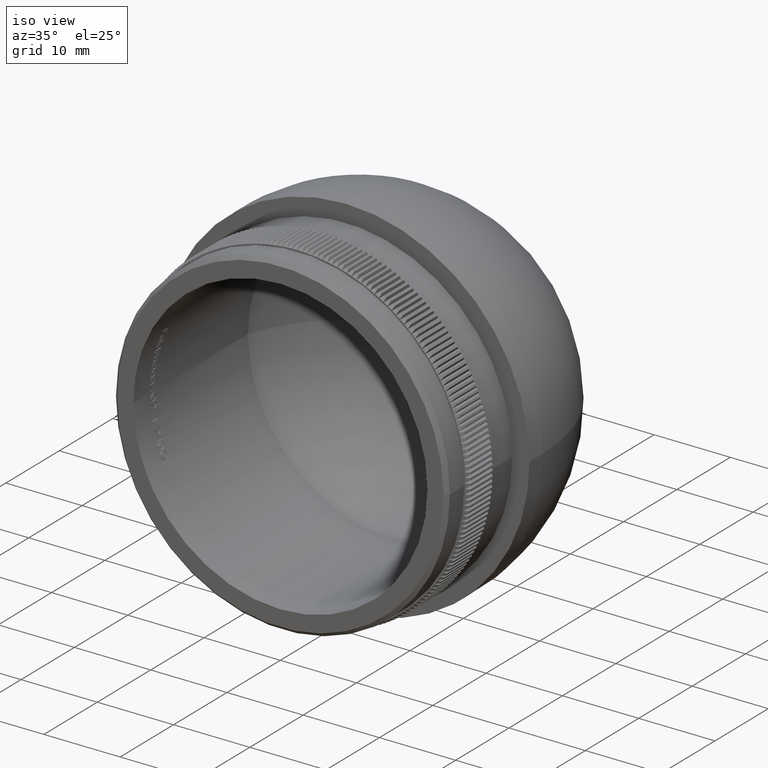
[diagram: clean part render]
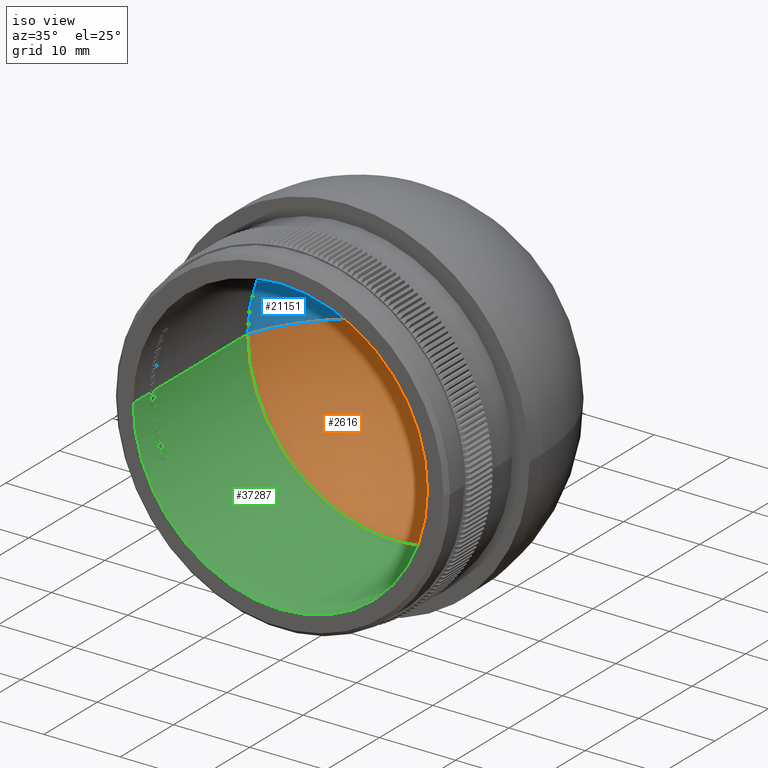
[diagram: same view with three faces highlighted in distinct colors, each labeled with its STEP entity id]
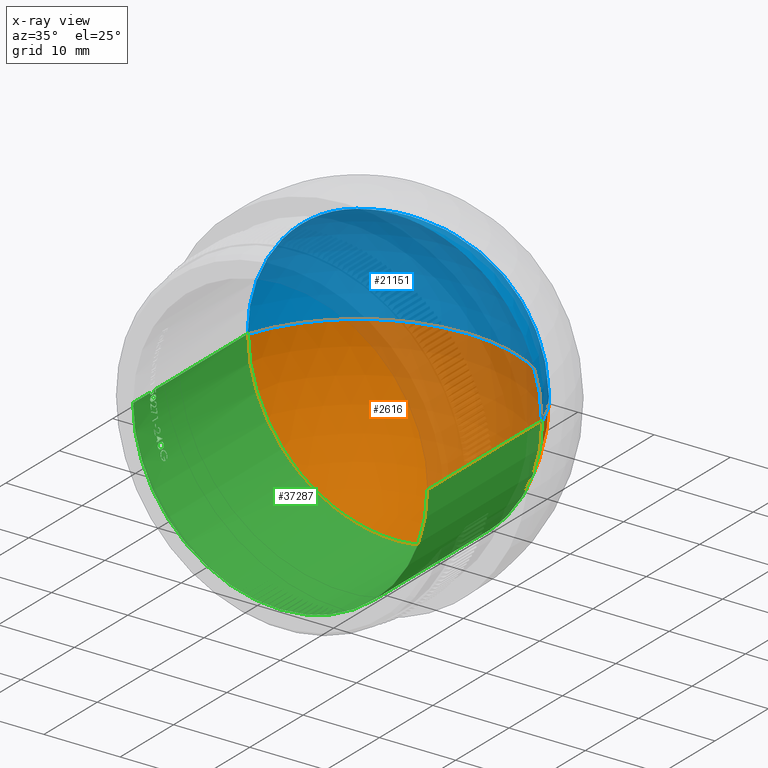
[diagram: x-ray of the same camera — body ghosted, the three highlighted faces saturated]
A machine part, iso view with three faces highlighted in distinct colors.
The next image is the same camera in x-ray (body ghosted, the three faces saturated) — at least one of them is partly hidden behind the body in this view.
Their STEP definitions:

[orange] entity #2616 — the highlighted spherical surface has radius 20.45 mm.
#1102 = ORIENTED_EDGE ( 'NONE', *, *, #3116, .T. ) ;
#1571 = VERTEX_POINT ( 'NONE', #12812 ) ;
#2616 = ADVANCED_FACE ( 'NONE', ( #40854 ), #16641, .F. ) ;
#2696 = DIRECTION ( 'NONE',  ( -1.000000000000000000, 1.357240861399947500E-015, 0.0000000000000000000 ) ) ;
#3116 = EDGE_CURVE ( 'NONE', #16324, #1571, #12255, .T. ) ;
#4541 = AXIS2_PLACEMENT_3D ( 'NONE', #16808, #35576, #19977 ) ;
#8318 = CIRCLE ( 'NONE', #23818, 20.44999999999999200 ) ;
#9936 = CARTESIAN_POINT ( 'NONE',  ( 2.534909774024268100E-014, 35.14999999999999100, 0.0000000000000000000 ) ) ;
#10148 = CARTESIAN_POINT ( 'NONE',  ( -1.800230794746609100E-015, 14.69999999999999900, 0.0000000000000000000 ) ) ;
#10534 = DIRECTION ( 'NONE',  ( -1.224646799147353200E-016, 1.700823602305442300E-031, -1.000000000000000000 ) ) ;
#12255 = CIRCLE ( 'NONE', #4541, 19.30000000000002200 ) ;
#12757 = EDGE_LOOP ( 'NONE', ( #33953, #32608, #1102 ) ) ;
#12812 = CARTESIAN_POINT ( 'NONE',  ( 19.30000000000000400, 21.46110198118616500, 0.0000000000000000000 ) ) ;
#13426 = AXIS2_PLACEMENT_3D ( 'NONE', #24625, #34377, #2696 ) ;
#16269 = CIRCLE ( 'NONE', #21230, 20.44999999999999200 ) ;
#16324 = VERTEX_POINT ( 'NONE', #28834 ) ;
#16641 = SPHERICAL_SURFACE ( 'NONE', #13426, 20.44999999999999200 ) ;
#16808 = CARTESIAN_POINT ( 'NONE',  ( -1.901152304171360100E-014, 21.46110198118618900, 0.0000000000000000000 ) ) ;
#16908 = CARTESIAN_POINT ( 'NONE',  ( -1.800230794746609100E-015, 14.69999999999999900, 0.0000000000000000000 ) ) ;
#18736 = EDGE_CURVE ( 'NONE', #35490, #1571, #16269, .T. ) ;
#19977 = DIRECTION ( 'NONE',  ( 1.000000000000000000, -1.438112726198387700E-015, 0.0000000000000000000 ) ) ;
#21230 = AXIS2_PLACEMENT_3D ( 'NONE', #16908, #10534, #39134 ) ;
#23818 = AXIS2_PLACEMENT_3D ( 'NONE', #10148, #38451, #32229 ) ;
#24625 = CARTESIAN_POINT ( 'NONE',  ( -1.800230794746609100E-015, 14.69999999999999900, 0.0000000000000000000 ) ) ;
#28834 = CARTESIAN_POINT ( 'NONE',  ( -19.30000000000004000, 21.46110198118621800, 2.363568322354395800E-015 ) ) ;
#32229 = DIRECTION ( 'NONE',  ( 1.000000000000000000, 0.0000000000000000000, 0.0000000000000000000 ) ) ;
#32608 = ORIENTED_EDGE ( 'NONE', *, *, #36039, .T. ) ;
#33953 = ORIENTED_EDGE ( 'NONE', *, *, #18736, .F. ) ;
#34377 = DIRECTION ( 'NONE',  ( 0.0000000000000000000, 0.0000000000000000000, -1.000000000000000000 ) ) ;
#35490 = VERTEX_POINT ( 'NONE', #9936 ) ;
#35576 = DIRECTION ( 'NONE',  ( -1.388827867340707400E-015, -1.000000000000000000, -0.0000000000000000000 ) ) ;
#36039 = EDGE_CURVE ( 'NONE', #35490, #16324, #8318, .T. ) ;
#38451 = DIRECTION ( 'NONE',  ( 0.0000000000000000000, -0.0000000000000000000, 1.000000000000000000 ) ) ;
#39134 = DIRECTION ( 'NONE',  ( -1.000000000000000000, 0.0000000000000000000, 1.224646799147353200E-016 ) ) ;
#40854 = FACE_OUTER_BOUND ( 'NONE', #12757, .T. ) ;

[blue] entity #21151 — the highlighted spherical surface has radius 20.45 mm.
#1315 = ORIENTED_EDGE ( 'NONE', *, *, #37248, .T. ) ;
#1571 = VERTEX_POINT ( 'NONE', #12812 ) ;
#5803 = DIRECTION ( 'NONE',  ( 1.000000000000000000, -1.438112726198387700E-015, 0.0000000000000000000 ) ) ;
#7838 = AXIS2_PLACEMENT_3D ( 'NONE', #21426, #21311, #27674 ) ;
#8318 = CIRCLE ( 'NONE', #23818, 20.44999999999999200 ) ;
#9936 = CARTESIAN_POINT ( 'NONE',  ( 2.534909774024268100E-014, 35.14999999999999100, 0.0000000000000000000 ) ) ;
#10148 = CARTESIAN_POINT ( 'NONE',  ( -1.800230794746609100E-015, 14.69999999999999900, 0.0000000000000000000 ) ) ;
#10534 = DIRECTION ( 'NONE',  ( -1.224646799147353200E-016, 1.700823602305442300E-031, -1.000000000000000000 ) ) ;
#12586 = EDGE_LOOP ( 'NONE', ( #35747, #29253, #1315 ) ) ;
#12812 = CARTESIAN_POINT ( 'NONE',  ( 19.30000000000000400, 21.46110198118616500, 0.0000000000000000000 ) ) ;
#16269 = CIRCLE ( 'NONE', #21230, 20.44999999999999200 ) ;
#16324 = VERTEX_POINT ( 'NONE', #28834 ) ;
#16908 = CARTESIAN_POINT ( 'NONE',  ( -1.800230794746609100E-015, 14.69999999999999900, 0.0000000000000000000 ) ) ;
#18736 = EDGE_CURVE ( 'NONE', #35490, #1571, #16269, .T. ) ;
#21151 = ADVANCED_FACE ( 'NONE', ( #31431 ), #29922, .F. ) ;
#21230 = AXIS2_PLACEMENT_3D ( 'NONE', #16908, #10534, #39134 ) ;
#21311 = DIRECTION ( 'NONE',  ( 0.0000000000000000000, 0.0000000000000000000, -1.000000000000000000 ) ) ;
#21426 = CARTESIAN_POINT ( 'NONE',  ( -1.800230794746609100E-015, 14.69999999999999900, 0.0000000000000000000 ) ) ;
#23818 = AXIS2_PLACEMENT_3D ( 'NONE', #10148, #38451, #32229 ) ;
#25271 = CARTESIAN_POINT ( 'NONE',  ( -1.901152304171360100E-014, 21.46110198118618900, 0.0000000000000000000 ) ) ;
#27674 = DIRECTION ( 'NONE',  ( -1.000000000000000000, 1.357240861399947500E-015, 0.0000000000000000000 ) ) ;
#28008 = DIRECTION ( 'NONE',  ( -1.388827867340707400E-015, -1.000000000000000000, -0.0000000000000000000 ) ) ;
#28834 = CARTESIAN_POINT ( 'NONE',  ( -19.30000000000004000, 21.46110198118621800, 2.363568322354395800E-015 ) ) ;
#29253 = ORIENTED_EDGE ( 'NONE', *, *, #18736, .T. ) ;
#29922 = SPHERICAL_SURFACE ( 'NONE', #7838, 20.44999999999999200 ) ;
#31431 = FACE_OUTER_BOUND ( 'NONE', #12586, .T. ) ;
#32229 = DIRECTION ( 'NONE',  ( 1.000000000000000000, 0.0000000000000000000, 0.0000000000000000000 ) ) ;
#34126 = AXIS2_PLACEMENT_3D ( 'NONE', #25271, #28008, #5803 ) ;
#35490 = VERTEX_POINT ( 'NONE', #9936 ) ;
#35747 = ORIENTED_EDGE ( 'NONE', *, *, #36039, .F. ) ;
#36039 = EDGE_CURVE ( 'NONE', #35490, #16324, #8318, .T. ) ;
#37248 = EDGE_CURVE ( 'NONE', #1571, #16324, #37954, .T. ) ;
#37954 = CIRCLE ( 'NONE', #34126, 19.30000000000002200 ) ;
#38451 = DIRECTION ( 'NONE',  ( 0.0000000000000000000, -0.0000000000000000000, 1.000000000000000000 ) ) ;
#39134 = DIRECTION ( 'NONE',  ( -1.000000000000000000, 0.0000000000000000000, 1.224646799147353200E-016 ) ) ;

[green] entity #37287 — the highlighted cylindrical surface (partial cylindrical patch) has radius 19.3 mm, axis along (-0, -1, -0).
#8 = VERTEX_POINT ( 'NONE', #22034 ) ;
#14 = CIRCLE ( 'NONE', #36480, 19.30000000000004000 ) ;
#20 = B_SPLINE_CURVE_WITH_KNOTS ( 'NONE', 3,
 ( #34774, #10060, #3642, #19473, #353, #31612, #22632, #22232 ),
 .UNSPECIFIED., .F., .F.,
 ( 4, 2, 2, 4 ),
 ( 0.0000000000000000000, 0.0001122107956246799700, 0.0002244215912493599500, 0.0004488431824987208700 ),
 .UNSPECIFIED. ) ;
#71 = B_SPLINE_CURVE_WITH_KNOTS ( 'NONE', 3,
 ( #10972, #26327, #33196, #11247 ),
 .UNSPECIFIED., .F., .F.,
 ( 4, 4 ),
 ( 0.0000000000000000000, 3.988623304282488100E-006 ),
 .UNSPECIFIED. ) ;
#126 = ORIENTED_EDGE ( 'NONE', *, *, #5934, .T. ) ;
#178 = CARTESIAN_POINT ( 'NONE',  ( -18.45824441362974300, 35.15000000000001300, -5.637660256410260500 ) ) ;
#194 = CARTESIAN_POINT ( 'NONE',  ( -19.26265529387244500, 3.666741640214889600, -1.200046499666369600 ) ) ;
#207 = CARTESIAN_POINT ( 'NONE',  ( -17.90391306123099500, 4.284633364814158800, -7.207346867653583000 ) ) ;
#233 = VECTOR ( 'NONE', #23225, 1000.000000000000000 ) ;
#234 = CARTESIAN_POINT ( 'NONE',  ( -19.13684783031648700, 3.839697423132811100, -2.509345706953041200 ) ) ;
#353 = CARTESIAN_POINT ( 'NONE',  ( -18.67210121059312300, 3.792077506188941300, -4.882941510704633900 ) ) ;
#402 = EDGE_CURVE ( 'NONE', #9492, #16659, #2023, .T. ) ;
#443 = CARTESIAN_POINT ( 'NONE',  ( -17.67372099955318600, 4.077704326923085700, -7.754326923076924900 ) ) ;
#451 = VERTEX_POINT ( 'NONE', #2851 ) ;
#467 = EDGE_CURVE ( 'NONE', #451, #28490, #38666, .T. ) ;
#486 = VERTEX_POINT ( 'NONE', #9690 ) ;
#493 = DIRECTION ( 'NONE',  ( 0.0000000000000000000, 1.000000000000000000, -0.0000000000000000000 ) ) ;
#529 = CARTESIAN_POINT ( 'NONE',  ( -18.81260580170221900, 4.111794046426094700, -4.310007552004068800 ) ) ;
#531 = CARTESIAN_POINT ( 'NONE',  ( -19.27918639451785800, 4.284370011103396400, -0.8982870800118885100 ) ) ;
#622 = VECTOR ( 'NONE', #14862, 1000.000000000000000 ) ;
#628 = ORIENTED_EDGE ( 'NONE', *, *, #13570, .T. ) ;
#631 = CARTESIAN_POINT ( 'NONE',  ( -19.22295502975102400, 4.284494669995617700, -1.723296031417386000 ) ) ;
#640 = DIRECTION ( 'NONE',  ( 1.388827867340707400E-015, 1.000000000000000000, 0.0000000000000000000 ) ) ;
#665 = CARTESIAN_POINT ( 'NONE',  ( -18.79194964970687600, 4.216830099833596400, -4.399284622791022100 ) ) ;
#836 = DIRECTION ( 'NONE',  ( 0.0000000000000000000, 1.000000000000000000, -0.0000000000000000000 ) ) ;
#853 = CARTESIAN_POINT ( 'NONE',  ( -18.27411788229295600, 4.285470085470094200, -6.208592080662398000 ) ) ;
#858 = CARTESIAN_POINT ( 'NONE',  ( -19.29398836244306600, 3.728742654914538200, -0.4816773504273570400 ) ) ;
#920 = LINE ( 'NONE', #36136, #33443 ) ;
#939 = LINE ( 'NONE', #178, #4364 ) ;
#965 = CARTESIAN_POINT ( 'NONE',  ( -18.84961070133344300, 3.661324786324797300, -4.145138888888893400 ) ) ;
#985 = CARTESIAN_POINT ( 'NONE',  ( -19.29397936796925700, 3.790357633473557400, -0.4820376315840289600 ) ) ;
#1046 = VERTEX_POINT ( 'NONE', #38075 ) ;
#1055 = CARTESIAN_POINT ( 'NONE',  ( -18.52245816456743900, 4.006323185825458200, -5.426665276745593400 ) ) ;
#1070 = CIRCLE ( 'NONE', #32907, 19.30000000000004000 ) ;
#1117 = CARTESIAN_POINT ( 'NONE',  ( -19.29162424529659600, 4.145448364426976600, -0.5691694369293554000 ) ) ;
#1149 = CIRCLE ( 'NONE', #16237, 19.30000000000004000 ) ;
#1170 = EDGE_CURVE ( 'NONE', #35117, #40705, #27801, .T. ) ;
#1332 = EDGE_CURVE ( 'NONE', #33537, #24143, #31040, .T. ) ;
#1333 = ORIENTED_EDGE ( 'NONE', *, *, #22043, .T. ) ;
#1381 = CARTESIAN_POINT ( 'NONE',  ( -18.02103626377739000, 4.018762994695977800, -6.909024030075229900 ) ) ;
#1387 = B_SPLINE_CURVE_WITH_KNOTS ( 'NONE', 3,
 ( #25552, #6637, #9641, #28713, #12824, #28445, #3365, #34895, #22479, #9774 ),
 .UNSPECIFIED., .F., .F.,
 ( 4, 2, 2, 2, 4 ),
 ( 0.0000000000000000000, 8.857628440228480400E-005, 0.0001771525688045696100, 0.0002657288532068544100, 0.0003543051376091392200 ),
 .UNSPECIFIED. ) ;
#1464 = CARTESIAN_POINT ( 'NONE',  ( -18.14591208355599500, 3.728742654914538200, -6.573878205128209200 ) ) ;
#1488 = ORIENTED_EDGE ( 'NONE', *, *, #32785, .T. ) ;
#1513 = CARTESIAN_POINT ( 'NONE',  ( -17.93527748775068900, 3.185823909981239300, -7.129041429285090100 ) ) ;
#1571 = VERTEX_POINT ( 'NONE', #12812 ) ;
#1593 = CARTESIAN_POINT ( 'NONE',  ( -18.42050446011316800, 35.15000000000001300, -5.759775641025645300 ) ) ;
#1636 = EDGE_CURVE ( 'NONE', #22685, #34120, #28331, .T. ) ;
#1686 = EDGE_CURVE ( 'NONE', #22488, #9492, #9329, .T. ) ;
#1755 = VERTEX_POINT ( 'NONE', #39617 ) ;
#1861 = CARTESIAN_POINT ( 'NONE',  ( -18.14713589255686800, 3.855891068089641200, -6.570508198767634600 ) ) ;
#1978 = VECTOR ( 'NONE', #40613, 1000.000000000000000 ) ;
#2023 = B_SPLINE_CURVE_WITH_KNOTS ( 'NONE', 3,
 ( #12323, #27941, #34124, #40620, #8755, #8615 ),
 .UNSPECIFIED., .F., .F.,
 ( 4, 2, 4 ),
 ( 0.0000000000000000000, 0.0001963283947048861900, 0.0003926567894097723800 ),
 .UNSPECIFIED. ) ;
#2056 = CARTESIAN_POINT ( 'NONE',  ( -19.16896219858830400, 3.187911903846085200, -2.245361067202500400 ) ) ;
#2084 = CARTESIAN_POINT ( 'NONE',  ( -18.27411788229295900, 3.172863247863256100, -6.208592080662398000 ) ) ;
#2109 = CARTESIAN_POINT ( 'NONE',  ( -18.77922142601051500, 3.308547008547017200, -4.453183426816243800 ) ) ;
#2127 = CARTESIAN_POINT ( 'NONE',  ( -19.29348133773865500, 3.483850777236246800, -0.5016498815769777600 ) ) ;
#2256 = DIRECTION ( 'NONE',  ( -0.0000000000000000000, -1.000000000000000000, -0.0000000000000000000 ) ) ;
#2323 = DIRECTION ( 'NONE',  ( -0.0000000000000000000, -1.000000000000000000, -0.0000000000000000000 ) ) ;
#2360 = DIRECTION ( 'NONE',  ( 0.0000000000000000000, 0.0000000000000000000, 1.000000000000000000 ) ) ;
#2368 = CIRCLE ( 'NONE', #33813, 19.30000000000004000 ) ;
#2371 = EDGE_CURVE ( 'NONE', #32371, #22488, #11085, .T. ) ;
#2375 = LINE ( 'NONE', #1593, #6802 ) ;
#2392 = CARTESIAN_POINT ( 'NONE',  ( -18.65557069124929900, 35.15000000000001300, -4.945673076923081400 ) ) ;
#2417 = FACE_BOUND ( 'NONE', #20994, .T. ) ;
#2445 = CARTESIAN_POINT ( 'NONE',  ( -18.74075152490786400, 4.285470085470094200, -4.612399839743594600 ) ) ;
#2462 = CARTESIAN_POINT ( 'NONE',  ( -4.388310275277926700E-014, 3.552777777777786500, 0.0000000000000000000 ) ) ;
#2560 = CARTESIAN_POINT ( 'NONE',  ( -18.73468175221519200, 3.638004139957273300, -4.636992521367526300 ) ) ;
#2591 = CIRCLE ( 'NONE', #19568, 19.30000000000004000 ) ;
#2595 = ORIENTED_EDGE ( 'NONE', *, *, #32844, .T. ) ;
#2718 = EDGE_CURVE ( 'NONE', #16368, #18179, #39372, .T. ) ;
#2757 = CARTESIAN_POINT ( 'NONE',  ( -17.91249527429893000, 3.290239867748073100, -7.185850030735150700 ) ) ;
#2781 = VERTEX_POINT ( 'NONE', #20565 ) ;
#2799 = ORIENTED_EDGE ( 'NONE', *, *, #10764, .F. ) ;
#2848 = VERTEX_POINT ( 'NONE', #2109 ) ;
#2851 = CARTESIAN_POINT ( 'NONE',  ( -18.74075152490786400, 4.285470085470094200, -4.612399839743594600 ) ) ;
#2865 = CARTESIAN_POINT ( 'NONE',  ( -19.04138341071984500, 4.258333333333341700, -3.148923277243599500 ) ) ;
#2899 = EDGE_LOOP ( 'NONE', ( #36219, #5278, #39840, #25349, #28125, #26703 ) ) ;
#2946 = CARTESIAN_POINT ( 'NONE',  ( -19.27066158679047400, 3.261532541162313900, -1.065064647559878400 ) ) ;
#2987 = CARTESIAN_POINT ( 'NONE',  ( -4.373234964239270300E-014, 3.661324786324797300, 0.0000000000000000000 ) ) ;
#3011 = EDGE_LOOP ( 'NONE', ( #9385, #29194, #4871, #7605, #4458, #26635, #29539, #38102, #14217, #32631 ) ) ;
#3112 = EDGE_CURVE ( 'NONE', #35639, #37204, #38496, .T. ) ;
#3116 = EDGE_CURVE ( 'NONE', #16324, #1571, #12255, .T. ) ;
#3140 = DIRECTION ( 'NONE',  ( 0.0000000000000000000, 0.0000000000000000000, 1.000000000000000000 ) ) ;
#3278 = DIRECTION ( 'NONE',  ( -0.0000000000000000000, -1.000000000000000000, -0.0000000000000000000 ) ) ;
#3302 = ORIENTED_EDGE ( 'NONE', *, *, #10460, .T. ) ;
#3365 = CARTESIAN_POINT ( 'NONE',  ( -18.71418268896222200, 4.152810465532389200, -4.719124309829616900 ) ) ;
#3384 = VERTEX_POINT ( 'NONE', #12502 ) ;
#3400 = DIRECTION ( 'NONE',  ( -0.0000000000000000000, -1.000000000000000000, -0.0000000000000000000 ) ) ;
#3417 = EDGE_CURVE ( 'NONE', #35339, #24647, #2591, .T. ) ;
#3426 = CARTESIAN_POINT ( 'NONE',  ( -19.23287275995429700, 3.402803362220548200, -1.610730914530308800 ) ) ;
#3476 = VERTEX_POINT ( 'NONE', #19532 ) ;
#3550 = CARTESIAN_POINT ( 'NONE',  ( -18.65916244690018300, 3.970853365384623400, -4.932104700854705600 ) ) ;
#3564 = B_SPLINE_CURVE_WITH_KNOTS ( 'NONE', 3,
 ( #13748, #35695, #23400, #13472, #7559, #16794, #14024, #13889 ),
 .UNSPECIFIED., .F., .F.,
 ( 4, 2, 2, 4 ),
 ( 0.0000000000000000000, 9.674183678199402500E-005, 0.0001934836735639880500, 0.0003869673471279778300 ),
 .UNSPECIFIED. ) ;
#3642 = CARTESIAN_POINT ( 'NONE',  ( -18.66077043124937500, 3.895954583649945400, -4.926033334791914500 ) ) ;
#3793 = CARTESIAN_POINT ( 'NONE',  ( -17.69744712878583600, 4.026283350174112200, -7.700080617935149100 ) ) ;
#3796 = VECTOR ( 'NONE', #31330, 1000.000000000000000 ) ;
#3847 = DIRECTION ( 'NONE',  ( 0.0000000000000000000, 0.0000000000000000000, 1.000000000000000000 ) ) ;
#3946 = CARTESIAN_POINT ( 'NONE',  ( -18.63013232224905000, 3.444230769230777400, -5.040651709401713800 ) ) ;
#3975 = DIRECTION ( 'NONE',  ( 0.0000000000000000000, 0.0000000000000000000, 1.000000000000000000 ) ) ;
#3997 = EDGE_CURVE ( 'NONE', #1755, #25219, #40154, .T. ) ;
#4018 = DIRECTION ( 'NONE',  ( 0.0000000000000000000, 0.0000000000000000000, 1.000000000000000000 ) ) ;
#4126 = EDGE_CURVE ( 'NONE', #16644, #19937, #12598, .T. ) ;
#4187 = ORIENTED_EDGE ( 'NONE', *, *, #38338, .T. ) ;
#4272 = CARTESIAN_POINT ( 'NONE',  ( -19.28695251544622000, 4.266349634298628700, -0.7114294457666413600 ) ) ;
#4364 = VECTOR ( 'NONE', #16384, 1000.000000000000000 ) ;
#4391 = CARTESIAN_POINT ( 'NONE',  ( -17.86703592453174500, 3.172863247863256100, -7.297878271901711700 ) ) ;
#4458 = ORIENTED_EDGE ( 'NONE', *, *, #29636, .T. ) ;
#4490 = CARTESIAN_POINT ( 'NONE',  ( -19.20097747607041700, 3.792880382170751700, -1.952669535494022200 ) ) ;
#4500 = CARTESIAN_POINT ( 'NONE',  ( -18.16122966641528100, 4.042223459545202700, -6.531515651039208900 ) ) ;
#4538 = VERTEX_POINT ( 'NONE', #16082 ) ;
#4541 = AXIS2_PLACEMENT_3D ( 'NONE', #16808, #35576, #19977 ) ;
#4606 = AXIS2_PLACEMENT_3D ( 'NONE', #21993, #40477, #3140 ) ;
#4608 = DIRECTION ( 'NONE',  ( 0.0000000000000000000, 0.0000000000000000000, 1.000000000000000000 ) ) ;
#4630 = CARTESIAN_POINT ( 'NONE',  ( -19.30000000000007500, 3.891141865819337700, -0.01329098407282757600 ) ) ;
#4678 = CARTESIAN_POINT ( 'NONE',  ( -18.02525530248800600, 3.305856631221852900, -6.898124912757659800 ) ) ;
#4707 = CARTESIAN_POINT ( 'NONE',  ( -18.15433307623371200, 3.478711462973146200, -6.550595689819661300 ) ) ;
#4744 = CARTESIAN_POINT ( 'NONE',  ( -19.29641147638505300, 3.590897220336879900, -0.3721626938999232400 ) ) ;
#4785 = DIRECTION ( 'NONE',  ( 1.388827867340707400E-015, 1.000000000000000000, 0.0000000000000000000 ) ) ;
#4805 = VERTEX_POINT ( 'NONE', #13706 ) ;
#4871 = ORIENTED_EDGE ( 'NONE', *, *, #36584, .T. ) ;
#4912 = CARTESIAN_POINT ( 'NONE',  ( -18.18210386141815200, 4.153351174227911000, -6.473179965724368000 ) ) ;
#4919 = CARTESIAN_POINT ( 'NONE',  ( -19.30000000000007500, 3.889600630797732400, 3.377925042002786400E-014 ) ) ;
#4957 = CARTESIAN_POINT ( 'NONE',  ( -18.71242990328071800, 3.732495200829992800, -4.726172558733427600 ) ) ;
#5048 = CARTESIAN_POINT ( 'NONE',  ( -18.14618880234182900, 3.792414924917253000, -6.573114376745209600 ) ) ;
#5075 = CIRCLE ( 'NONE', #30072, 19.30000000000004000 ) ;
#5086 = CARTESIAN_POINT ( 'NONE',  ( -18.48698678572936400, 35.15000000000001300, -5.542681623931628100 ) ) ;
#5223 = CIRCLE ( 'NONE', #27720, 19.30000000000004000 ) ;
#5278 = ORIENTED_EDGE ( 'NONE', *, *, #2718, .T. ) ;
#5358 = CARTESIAN_POINT ( 'NONE',  ( -19.22702510620172900, 4.176923076923085200, -1.676754473824789700 ) ) ;
#5569 = CARTESIAN_POINT ( 'NONE',  ( -18.34834371865502000, 4.200528610744616000, -5.985918255813914800 ) ) ;
#5600 = EDGE_CURVE ( 'NONE', #22840, #34906, #18983, .T. ) ;
#5611 = DIRECTION ( 'NONE',  ( -0.0000000000000000000, -1.000000000000000000, -0.0000000000000000000 ) ) ;
#5725 = EDGE_CURVE ( 'NONE', #24216, #22840, #34879, .T. ) ;
#5886 = EDGE_LOOP ( 'NONE', ( #6345, #14848, #10608, #18618 ) ) ;
#5934 = EDGE_CURVE ( 'NONE', #16324, #2781, #17768, .T. ) ;
#5997 = EDGE_CURVE ( 'NONE', #2781, #9257, #8392, .T. ) ;
#6097 = CARTESIAN_POINT ( 'NONE',  ( -19.27917226576367300, 3.173781764409212800, -0.8986131414995569600 ) ) ;
#6118 =( BOUNDED_CURVE ( )  B_SPLINE_CURVE ( 3, ( #15899, #9671, #234, #6548 ),
 .UNSPECIFIED., .F., .T. ) 
 B_SPLINE_CURVE_WITH_KNOTS ( ( 4, 4 ),
 ( 1.684547004986689700, 1.709494790363799400 ),
 .UNSPECIFIED. ) 
 CURVE ( )  GEOMETRIC_REPRESENTATION_ITEM ( )  RATIONAL_B_SPLINE_CURVE ( ( 1.000000000000000000, 0.9999481346729149900, 0.9999481346729149900, 1.000000000000000000 ) ) 
 REPRESENTATION_ITEM ( '' )  );
#6145 = VECTOR ( 'NONE', #15085, 1000.000000000000000 ) ;
#6187 = CARTESIAN_POINT ( 'NONE',  ( -18.73468175221519200, 3.638004139957273300, -4.636992521367526300 ) ) ;
#6223 = VECTOR ( 'NONE', #30750, 1000.000000000000000 ) ;
#6234 = CARTESIAN_POINT ( 'NONE',  ( -19.26280844493243200, 3.604962708368024200, -1.197623466931643500 ) ) ;
#6278 = ORIENTED_EDGE ( 'NONE', *, *, #467, .T. ) ;
#6345 = ORIENTED_EDGE ( 'NONE', *, *, #26394, .T. ) ;
#6410 = EDGE_CURVE ( 'NONE', #24143, #35117, #16433, .T. ) ;
#6442 = CARTESIAN_POINT ( 'NONE',  ( -18.80055648309280500, 3.932692307692316800, -4.362232905982911500 ) ) ;
#6511 = CARTESIAN_POINT ( 'NONE',  ( -19.26504722556365200, 3.422328999763943400, -1.161365225555887700 ) ) ;
#6548 = CARTESIAN_POINT ( 'NONE',  ( -19.11465781341975400, 4.149786324786333600, -2.668305956196586100 ) ) ;
#6560 = CARTESIAN_POINT ( 'NONE',  ( -18.69169321227428800, 4.228426225811023900, -4.807446292100838300 ) ) ;
#6570 = CARTESIAN_POINT ( 'NONE',  ( -19.23986109657961700, 3.308547008547017200, -1.522414196047011900 ) ) ;
#6637 = CARTESIAN_POINT ( 'NONE',  ( -18.68421497018706400, 3.992184873093894900, -4.836332455474483500 ) ) ;
#6688 = DIRECTION ( 'NONE',  ( 0.0000000000000000000, 0.0000000000000000000, -1.000000000000000000 ) ) ;
#6789 = CARTESIAN_POINT ( 'NONE',  ( -19.25645228003081800, 3.200000000000008200, -1.295779914529917800 ) ) ;
#6802 = VECTOR ( 'NONE', #23654, 1000.000000000000000 ) ;
#6814 = CARTESIAN_POINT ( 'NONE',  ( -17.67372099955318600, 4.077704326923085700, -7.754326923076924900 ) ) ;
#7065 = CARTESIAN_POINT ( 'NONE',  ( -19.30000000000004000, 35.15000000000001300, 2.363568322354396600E-015 ) ) ;
#7088 = CARTESIAN_POINT ( 'NONE',  ( -18.82234153779127100, 3.932692307692317700, -4.267254273504278200 ) ) ;
#7249 = ORIENTED_EDGE ( 'NONE', *, *, #2371, .T. ) ;
#7297 = CARTESIAN_POINT ( 'NONE',  ( -18.73468175221519200, 3.638004139957273300, -4.636992521367526300 ) ) ;
#7320 = B_SPLINE_CURVE_WITH_KNOTS ( 'NONE', 3,
 ( #8307, #39889, #11731, #33679, #33811, #39763, #2127, #11465, #14646, #17832 ),
 .UNSPECIFIED., .F., .F.,
 ( 4, 2, 2, 2, 4 ),
 ( 0.0000000000000000000, 0.0001852691288436105900, 0.0003705382576872211800, 0.0005558073865308318200, 0.0007410765153744423600 ),
 .UNSPECIFIED. ) ;
#7350 = DIRECTION ( 'NONE',  ( -1.388827867340707400E-015, -1.000000000000000000, -0.0000000000000000000 ) ) ;
#7495 = DIRECTION ( 'NONE',  ( 0.0000000000000000000, 1.000000000000000000, -0.0000000000000000000 ) ) ;
#7559 = CARTESIAN_POINT ( 'NONE',  ( -18.77816080798992000, 4.131647677538025800, -4.457715666594055800 ) ) ;
#7562 = CARTESIAN_POINT ( 'NONE',  ( -19.28461921163850000, 4.284419203905998500, -0.7729092574097293800 ) ) ;
#7568 = CARTESIAN_POINT ( 'NONE',  ( -17.86703592453174500, 3.172863247863256100, -7.297878271901711700 ) ) ;
#7605 = ORIENTED_EDGE ( 'NONE', *, *, #8733, .T. ) ;
#7707 = AXIS2_PLACEMENT_3D ( 'NONE', #13653, #38775, #10598 ) ;
#7720 = CARTESIAN_POINT ( 'NONE',  ( -18.16090821401231600, 3.416817362639699600, -6.532410316735354000 ) ) ;
#7755 = VERTEX_POINT ( 'NONE', #31614 ) ;
#7782 = CARTESIAN_POINT ( 'NONE',  ( -19.17674416099700700, 4.258333333333340000, -2.177724358974364000 ) ) ;
#7839 = ORIENTED_EDGE ( 'NONE', *, *, #37431, .T. ) ;
#7859 = CARTESIAN_POINT ( 'NONE',  ( -4.881729953702580900E-014, 2.775557561562891400E-014, 0.0000000000000000000 ) ) ;
#7865 = ORIENTED_EDGE ( 'NONE', *, *, #32839, .T. ) ;
#7908 = CARTESIAN_POINT ( 'NONE',  ( -19.19595416581788100, 3.970853365384623400, -2.001335470085473300 ) ) ;
#7949 = EDGE_CURVE ( 'NONE', #34906, #3384, #17524, .T. ) ;
#7957 = EDGE_CURVE ( 'NONE', #9257, #24479, #920, .T. ) ;
#7973 = AXIS2_PLACEMENT_3D ( 'NONE', #34324, #27867, #40553 ) ;
#7997 = CARTESIAN_POINT ( 'NONE',  ( -18.14619109846384500, 3.665477933747725500, -6.573108038746982900 ) ) ;
#8104 = CARTESIAN_POINT ( 'NONE',  ( -17.69626331053001400, 3.507883776515833900, -7.702799566867829700 ) ) ;
#8125 = CARTESIAN_POINT ( 'NONE',  ( -18.19639274730152000, 3.257103871091082200, -6.433063845194603800 ) ) ;
#8163 = CARTESIAN_POINT ( 'NONE',  ( -18.65557069124934100, 3.200000000000008200, -4.945673076923081400 ) ) ;
#8172 = CARTESIAN_POINT ( 'NONE',  ( -19.21707267190015500, 3.591150841346162800, -1.787209535256413700 ) ) ;
#8276 = ORIENTED_EDGE ( 'NONE', *, *, #22641, .T. ) ;
#8307 = CARTESIAN_POINT ( 'NONE',  ( -19.28190640008005400, 3.172863247863256100, -0.8355151575854766800 ) ) ;
#8309 = CARTESIAN_POINT ( 'NONE',  ( -19.21452202138301500, 4.136511721351230800, -1.814555165946231100 ) ) ;
#8311 = EDGE_CURVE ( 'NONE', #26819, #25314, #8925, .T. ) ;
#8325 = CARTESIAN_POINT ( 'NONE',  ( -18.29461079990597100, 4.284457607462893100, -6.148274058903684400 ) ) ;
#8392 = CIRCLE ( 'NONE', #7707, 19.30000000000004000 ) ;
#8425 = AXIS2_PLACEMENT_3D ( 'NONE', #29674, #10895, #13816 ) ;
#8444 = EDGE_CURVE ( 'NONE', #9494, #25268, #22562, .T. ) ;
#8479 = CARTESIAN_POINT ( 'NONE',  ( 19.30000000000004000, 35.14999999999995600, 0.0000000000000000000 ) ) ;
#8546 = LINE ( 'NONE', #29728, #35708 ) ;
#8559 = B_SPLINE_CURVE_WITH_KNOTS ( 'NONE', 3,
 ( #16717, #38791, #23464, #30338, #14624, #30074, #17536, #39478, #27207, #17262 ),
 .UNSPECIFIED., .F., .F.,
 ( 4, 2, 2, 2, 4 ),
 ( 1.748223473168675600E-018, 0.0001365504208014147500, 0.0002731008416028277600, 0.0004096512624042407800, 0.0005462016832056537900 ),
 .UNSPECIFIED. ) ;
#8580 = CARTESIAN_POINT ( 'NONE',  ( -19.22184387477440400, 4.172354634014532800, -1.735354444651266300 ) ) ;
#8605 = EDGE_CURVE ( 'NONE', #16659, #26819, #30396, .T. ) ;
#8615 = CARTESIAN_POINT ( 'NONE',  ( -18.09618131614879000, 3.729590678418811800, -6.709561965811968100 ) ) ;
#8640 = CARTESIAN_POINT ( 'NONE',  ( -4.335546686642632300E-014, 3.932692307692317700, 0.0000000000000000000 ) ) ;
#8658 = CARTESIAN_POINT ( 'NONE',  ( -18.05461918678483700, 3.603649493904320900, -6.820679332645688000 ) ) ;
#8733 = EDGE_CURVE ( 'NONE', #24098, #7755, #25526, .T. ) ;
#8755 = CARTESIAN_POINT ( 'NONE',  ( -18.09554387212996600, 3.664120731580692100, -6.711281199139322400 ) ) ;
#8768 = DIRECTION ( 'NONE',  ( 0.0000000000000000000, 0.0000000000000000000, -1.000000000000000000 ) ) ;
#8774 = CARTESIAN_POINT ( 'NONE',  ( -4.290320753526665700E-014, 4.258333333333343500, 0.0000000000000000000 ) ) ;
#8801 = FACE_OUTER_BOUND ( 'NONE', #10745, .T. ) ;
#8806 = AXIS2_PLACEMENT_3D ( 'NONE', #24641, #37725, #18396 ) ;
#8902 = CARTESIAN_POINT ( 'NONE',  ( -19.22443242550019300, 3.638004139957273300, -1.706223290598293900 ) ) ;
#8907 = ORIENTED_EDGE ( 'NONE', *, *, #13195, .T. ) ;
#8925 = B_SPLINE_CURVE_WITH_KNOTS ( 'NONE', 3,
 ( #25658, #10141, #10276, #22442, #16100, #443 ),
 .UNSPECIFIED., .F., .F.,
 ( 4, 2, 4 ),
 ( 0.0000000000000000000, 0.0002830114033421038600, 0.0005660228066842077200 ),
 .UNSPECIFIED. ) ;
#8946 = LINE ( 'NONE', #33766, #622 ) ;
#8983 = EDGE_CURVE ( 'NONE', #18179, #33537, #9680, .T. ) ;
#8987 = VERTEX_POINT ( 'NONE', #6789 ) ;
#9081 = AXIS2_PLACEMENT_3D ( 'NONE', #37727, #25605, #25741 ) ;
#9164 = CARTESIAN_POINT ( 'NONE',  ( -19.04480668507492400, 4.222160671699755100, -3.128222906425941500 ) ) ;
#9257 = VERTEX_POINT ( 'NONE', #36133 ) ;
#9313 = CARTESIAN_POINT ( 'NONE',  ( -19.20625366344312800, 3.897705078386927800, -1.899994826950296900 ) ) ;
#9329 = B_SPLINE_CURVE_WITH_KNOTS ( 'NONE', 3,
 ( #7568, #29480, #1513, #26339, #4678, #10433 ),
 .UNSPECIFIED., .F., .F.,
 ( 4, 2, 4 ),
 ( 0.0000000000000000000, 0.0002720556691151722300, 0.0005441113382303444600 ),
 .UNSPECIFIED. ) ;
#9385 = ORIENTED_EDGE ( 'NONE', *, *, #23053, .T. ) ;
#9467 = DIRECTION ( 'NONE',  ( 0.0000000000000000000, 1.000000000000000000, -0.0000000000000000000 ) ) ;
#9492 = VERTEX_POINT ( 'NONE', #25653 ) ;
#9494 = VERTEX_POINT ( 'NONE', #965 ) ;
#9525 = EDGE_CURVE ( 'NONE', #22035, #13488, #16558, .T. ) ;
#9557 = CARTESIAN_POINT ( 'NONE',  ( -18.65950254677981600, 4.013695589914299000, -4.930818033339076800 ) ) ;
#9641 = CARTESIAN_POINT ( 'NONE',  ( -18.68557168413212100, 4.022020242056100000, -4.831105486291502200 ) ) ;
#9671 = CARTESIAN_POINT ( 'NONE',  ( -19.15705331920461800, 3.529092705077346200, -2.350121035786041800 ) ) ;
#9680 = LINE ( 'NONE', #25029, #3796 ) ;
#9690 = CARTESIAN_POINT ( 'NONE',  ( -18.83152363252570900, 3.200000000000008200, -4.226549145299149900 ) ) ;
#9705 = CARTESIAN_POINT ( 'NONE',  ( -19.21707267190015500, 3.591150841346162800, -1.787209535256413700 ) ) ;
#9742 = EDGE_CURVE ( 'NONE', #10375, #26568, #15052, .T. ) ;
#9772 = CARTESIAN_POINT ( 'NONE',  ( -19.26839622979012700, 3.311489778167870900, -1.104409580788757700 ) ) ;
#9774 = CARTESIAN_POINT ( 'NONE',  ( -18.74195094731621900, 4.176923076923085200, -4.607523704594021800 ) ) ;
#9792 = CARTESIAN_POINT ( 'NONE',  ( -17.87481757713046800, 4.285470085470094200, -7.278797743055557500 ) ) ;
#9819 = CARTESIAN_POINT ( 'NONE',  ( -17.70921652209357300, 4.000534188034196200, -7.672916666666668400 ) ) ;
#9854 = CARTESIAN_POINT ( 'NONE',  ( -18.36083420240743200, 3.306474808397235100, -5.947321541913745500 ) ) ;
#9903 = DIRECTION ( 'NONE',  ( 0.0000000000000000000, 1.000000000000000000, -0.0000000000000000000 ) ) ;
#9944 = ORIENTED_EDGE ( 'NONE', *, *, #1686, .T. ) ;
#9964 = CARTESIAN_POINT ( 'NONE',  ( -19.26260824190294600, 3.728742654914538200, -1.200801282051288600 ) ) ;
#9989 = CARTESIAN_POINT ( 'NONE',  ( -19.23656476557929200, 3.492127013302210000, -1.569525266782125600 ) ) ;
#10032 = CARTESIAN_POINT ( 'NONE',  ( -4.388310275277926700E-014, 3.552777777777786500, 0.0000000000000000000 ) ) ;
#10060 = CARTESIAN_POINT ( 'NONE',  ( -18.65950927794058600, 3.933077992163342100, -4.930792567978995700 ) ) ;
#10133 = CARTESIAN_POINT ( 'NONE',  ( -18.71445100352490700, 3.591150841346162400, -4.717978766025645100 ) ) ;
#10141 = CARTESIAN_POINT ( 'NONE',  ( -17.83875491220989700, 4.284053900779652800, -7.367358186628191400 ) ) ;
#10176 = DIRECTION ( 'NONE',  ( 0.0000000000000000000, 1.000000000000000000, -0.0000000000000000000 ) ) ;
#10185 = CARTESIAN_POINT ( 'NONE',  ( -4.286551925767001400E-014, 4.285470085470096000, 0.0000000000000000000 ) ) ;
#10222 = EDGE_CURVE ( 'NONE', #25004, #16068, #23954, .T. ) ;
#10275 = AXIS2_PLACEMENT_3D ( 'NONE', #8640, #31252, #21441 ) ;
#10276 = CARTESIAN_POINT ( 'NONE',  ( -17.80274306582159100, 4.268937013600019100, -7.453871348189864900 ) ) ;
#10327 = CARTESIAN_POINT ( 'NONE',  ( -19.24684160444374800, 3.932692307692315900, -1.431463675213678700 ) ) ;
#10331 = EDGE_CURVE ( 'NONE', #34120, #4538, #25682, .T. ) ;
#10336 = CARTESIAN_POINT ( 'NONE',  ( -18.42050446011321100, 3.552777777777786500, -5.759775641025645300 ) ) ;
#10375 = VERTEX_POINT ( 'NONE', #19014 ) ;
#10377 = CARTESIAN_POINT ( 'NONE',  ( -17.66938350753955000, 3.430058465229965500, -7.764249409092818700 ) ) ;
#10402 = CARTESIAN_POINT ( 'NONE',  ( -4.305396064565320800E-014, 4.149786324786332700, 0.0000000000000000000 ) ) ;
#10404 = B_SPLINE_CURVE_WITH_KNOTS ( 'NONE', 3,
 ( #31177, #194, #6234, #22209, #6511, #9772, #2946, #28575, #6097, #19190 ),
 .UNSPECIFIED., .F., .F.,
 ( 4, 2, 2, 2, 4 ),
 ( 0.0000000000000000000, 0.0001846817258839303200, 0.0003693634517678606400, 0.0005540451776517909300, 0.0007387269035357212700 ),
 .UNSPECIFIED. ) ;
#10433 = CARTESIAN_POINT ( 'NONE',  ( -18.04754400785897100, 3.372996794871803600, -6.839309561965814400 ) ) ;
#10460 = EDGE_CURVE ( 'NONE', #24479, #21511, #21417, .T. ) ;
#10487 = ORIENTED_EDGE ( 'NONE', *, *, #7949, .T. ) ;
#10550 = CARTESIAN_POINT ( 'NONE',  ( -19.28190640008005000, 4.285470085470094200, -0.8355151575854766800 ) ) ;
#10598 = DIRECTION ( 'NONE',  ( 0.0000000000000000000, 0.0000000000000000000, -1.000000000000000000 ) ) ;
#10608 = ORIENTED_EDGE ( 'NONE', *, *, #36824, .T. ) ;
#10745 = EDGE_LOOP ( 'NONE', ( #36367, #126, #22253, #15658, #3302, #34142, #16431, #24475, #25378, #36666, #20745, #1333, #2799 ) ) ;
#10748 = FACE_BOUND ( 'NONE', #19522, .T. ) ;
#10764 = EDGE_CURVE ( 'NONE', #1571, #40822, #13514, .T. ) ;
#10840 = CARTESIAN_POINT ( 'NONE',  ( -17.92327512958800300, 4.175509880180685600, -7.159738882115600100 ) ) ;
#10849 = CARTESIAN_POINT ( 'NONE',  ( -17.84428285197542200, 3.282400442533745600, -7.353515393924286800 ) ) ;
#10895 = DIRECTION ( 'NONE',  ( 0.0000000000000000000, 1.000000000000000000, -0.0000000000000000000 ) ) ;
#10931 = VERTEX_POINT ( 'NONE', #22386 ) ;
#10949 = ORIENTED_EDGE ( 'NONE', *, *, #8444, .T. ) ;
#10972 = CARTESIAN_POINT ( 'NONE',  ( -19.29999957964558600, 3.172863247863256100, -0.004028111645305572000 ) ) ;
#10988 = CARTESIAN_POINT ( 'NONE',  ( -17.68942379176039400, 3.556563697954032000, -7.718443950366889800 ) ) ;
#11009 = DIRECTION ( 'NONE',  ( -1.388827867340707400E-015, -1.000000000000000000, -0.0000000000000000000 ) ) ;
#11085 = B_SPLINE_CURVE_WITH_KNOTS ( 'NONE', 3,
 ( #29837, #29305, #26420, #10377, #14117, #35785, #32469, #35653, #16748, #29427 ),
 .UNSPECIFIED., .F., .F.,
 ( 4, 2, 2, 2, 4 ),
 ( 3.035766082959412400E-018, 0.0002192673096939392600, 0.0004385346193878754900, 0.0006578019290818116600, 0.0008770692387757479400 ),
 .UNSPECIFIED. ) ;
#11088 = AXIS2_PLACEMENT_3D ( 'NONE', #21354, #34053, #2360 ) ;
#11114 = CARTESIAN_POINT ( 'NONE',  ( -19.19453470367952600, 3.308547008547019000, -2.014903846153849500 ) ) ;
#11180 = CARTESIAN_POINT ( 'NONE',  ( -19.29960913394472800, 3.884656219385717300, -0.1297673860483472300 ) ) ;
#11247 = CARTESIAN_POINT ( 'NONE',  ( -19.30000000000007500, 3.172944376682414800, -3.558957158654711700E-014 ) ) ;
#11276 = FACE_BOUND ( 'NONE', #2899, .T. ) ;
#11299 = CARTESIAN_POINT ( 'NONE',  ( -19.20561906338123800, 3.962373130341888300, -1.906356837606840700 ) ) ;
#11394 = CARTESIAN_POINT ( 'NONE',  ( -19.17214593295392800, 3.202964344022982200, -2.218012267444475800 ) ) ;
#11422 = VERTEX_POINT ( 'NONE', #28353 ) ;
#11465 = CARTESIAN_POINT ( 'NONE',  ( -19.29392299335792800, 3.605550504478427100, -0.4843658325380775200 ) ) ;
#11531 = CARTESIAN_POINT ( 'NONE',  ( -19.29639276517690400, 3.545781583867529700, -0.3731303418803483300 ) ) ;
#11574 =( BOUNDED_CURVE ( )  B_SPLINE_CURVE ( 3, ( #3946, #23217, #1055, #32315 ),
 .UNSPECIFIED., .F., .F. ) 
 B_SPLINE_CURVE_WITH_KNOTS ( ( 4, 4 ),
 ( 1.835034194195168200, 1.866180217184896000 ),
 .UNSPECIFIED. ) 
 CURVE ( )  GEOMETRIC_REPRESENTATION_ITEM ( )  RATIONAL_B_SPLINE_CURVE ( ( 1.000000000000000000, 0.9999191620714056300, 0.9999191620714056300, 1.000000000000000000 ) ) 
 REPRESENTATION_ITEM ( '' )  );
#11596 = CARTESIAN_POINT ( 'NONE',  ( -19.28190640008005000, 4.285470085470094200, -0.8355151575854766800 ) ) ;
#11697 = ORIENTED_EDGE ( 'NONE', *, *, #1636, .T. ) ;
#11731 = CARTESIAN_POINT ( 'NONE',  ( -19.28694070431939200, 3.191700365630865600, -0.7117122620413101100 ) ) ;
#11751 = CARTESIAN_POINT ( 'NONE',  ( -18.37923937617431800, 4.039388009375284300, -5.890196931873365600 ) ) ;
#11954 = CARTESIAN_POINT ( 'NONE',  ( -19.29763071114148300, 3.314122003080231400, -0.3043229991596065300 ) ) ;
#12067 = ORIENTED_EDGE ( 'NONE', *, *, #19899, .T. ) ;
#12205 = CARTESIAN_POINT ( 'NONE',  ( -19.20574384891682500, 3.929697386238420800, -1.905099683954262700 ) ) ;
#12255 = CIRCLE ( 'NONE', #4541, 19.30000000000002200 ) ;
#12306 = CARTESIAN_POINT ( 'NONE',  ( -18.80073843485650900, 3.346374844633343700, -4.363713568924577400 ) ) ;
#12314 = DIRECTION ( 'NONE',  ( -0.0000000000000000000, -1.000000000000000000, -0.0000000000000000000 ) ) ;
#12323 = CARTESIAN_POINT ( 'NONE',  ( -18.04754400785897100, 3.372996794871803600, -6.839309561965814400 ) ) ;
#12331 = CARTESIAN_POINT ( 'NONE',  ( -19.30000000000007500, 3.889600630797732400, 3.377925042002786400E-014 ) ) ;
#12457 = CARTESIAN_POINT ( 'NONE',  ( -19.24638407946287400, 3.997068523608983800, -1.437615358270411600 ) ) ;
#12502 = CARTESIAN_POINT ( 'NONE',  ( -18.27411788229295900, 3.172863247863256100, -6.208592080662398000 ) ) ;
#12598 = B_SPLINE_CURVE_WITH_KNOTS ( 'NONE', 3,
 ( #7297, #36503, #4957, #33333, #27286, #17607, #20369, #17349 ),
 .UNSPECIFIED., .F., .F.,
 ( 4, 2, 2, 4 ),
 ( 0.0000000000000000000, 0.0001975575630646106000, 0.0002963363445969174800, 0.0003951151261292243300 ),
 .UNSPECIFIED. ) ;
#12605 = EDGE_CURVE ( 'NONE', #19937, #35890, #1387, .T. ) ;
#12608 = CARTESIAN_POINT ( 'NONE',  ( -19.27615913297760000, 4.267232406819943000, -0.9603900027380594100 ) ) ;
#12781 = ORIENTED_EDGE ( 'NONE', *, *, #30281, .T. ) ;
#12812 = CARTESIAN_POINT ( 'NONE',  ( 19.30000000000000400, 21.46110198118616500, 0.0000000000000000000 ) ) ;
#12824 = CARTESIAN_POINT ( 'NONE',  ( -18.69683729908379300, 4.098572312980061300, -4.787355488721464000 ) ) ;
#12858 =( BOUNDED_CURVE ( )  B_SPLINE_CURVE ( 3, ( #6814, #28747, #3793, #9819 ),
 .UNSPECIFIED., .F., .T. ) 
 B_SPLINE_CURVE_WITH_KNOTS ( ( 4, 4 ),
 ( 4.298930702120119700, 4.303532361476603900 ),
 .UNSPECIFIED. ) 
 CURVE ( )  GEOMETRIC_REPRESENTATION_ITEM ( )  RATIONAL_B_SPLINE_CURVE ( ( 1.000000000000000000, 0.9999982353950424000, 0.9999982353950424000, 1.000000000000000000 ) ) 
 REPRESENTATION_ITEM ( '' )  );
#12901 = ORIENTED_EDGE ( 'NONE', *, *, #23796, .T. ) ;
#12916 = EDGE_LOOP ( 'NONE', ( #31732, #36408, #628, #30682, #35974, #15869, #24376, #25308, #1488, #26954, #23835, #8907 ) ) ;
#12977 = CARTESIAN_POINT ( 'NONE',  ( -4.437305036153556900E-014, 3.200000000000008200, 0.0000000000000000000 ) ) ;
#13001 = CARTESIAN_POINT ( 'NONE',  ( -4.422229725114901200E-014, 3.308547008547019000, 0.0000000000000000000 ) ) ;
#13024 = EDGE_CURVE ( 'NONE', #19987, #35659, #31953, .T. ) ;
#13040 = CARTESIAN_POINT ( 'NONE',  ( -18.38964119390497800, 3.603006610163929800, -5.857575187760958500 ) ) ;
#13061 = ORIENTED_EDGE ( 'NONE', *, *, #10222, .T. ) ;
#13147 = CARTESIAN_POINT ( 'NONE',  ( -18.78293455379926900, 4.243571023020530600, -4.437704051471734500 ) ) ;
#13148 = AXIS2_PLACEMENT_3D ( 'NONE', #27347, #2256, #40712 ) ;
#13195 = EDGE_CURVE ( 'NONE', #8987, #40763, #28917, .T. ) ;
#13241 = CARTESIAN_POINT ( 'NONE',  ( -18.48698678572941000, 3.200000000000008200, -5.542681623931628100 ) ) ;
#13274 = CARTESIAN_POINT ( 'NONE',  ( -17.87611220985980900, 4.176923076923085200, -7.275617654914531900 ) ) ;
#13293 = CARTESIAN_POINT ( 'NONE',  ( -18.27411788229295600, 4.285470085470094200, -6.208592080662398000 ) ) ;
#13379 = EDGE_CURVE ( 'NONE', #25268, #4805, #5223, .T. ) ;
#13384 = EDGE_CURVE ( 'NONE', #16068, #20652, #35309, .T. ) ;
#13405 = CARTESIAN_POINT ( 'NONE',  ( -17.70921652209357300, 4.000534188034196200, -7.672916666666668400 ) ) ;
#13430 = CARTESIAN_POINT ( 'NONE',  ( -18.23269086396919300, 4.268609073594070900, -6.329446322702780800 ) ) ;
#13442 = CIRCLE ( 'NONE', #39906, 19.30000000000004000 ) ;
#13472 = CARTESIAN_POINT ( 'NONE',  ( -18.77168178451166700, 4.149672484614570500, -4.484964306440884800 ) ) ;
#13488 = VERTEX_POINT ( 'NONE', #25411 ) ;
#13490 = B_SPLINE_CURVE_WITH_KNOTS ( 'NONE', 3,
 ( #28351, #21548, #25198, #24903, #27788, #18964, #12457, #18684 ),
 .UNSPECIFIED., .F., .F.,
 ( 4, 2, 2, 4 ),
 ( 0.0000000000000000000, 9.548278521858552500E-005, 0.0001909655704371710500, 0.0003819311408743431300 ),
 .UNSPECIFIED. ) ;
#13514 = LINE ( 'NONE', #8479, #6145 ) ;
#13554 = VERTEX_POINT ( 'NONE', #18114 ) ;
#13570 = EDGE_CURVE ( 'NONE', #14346, #35639, #13490, .T. ) ;
#13647 = CARTESIAN_POINT ( 'NONE',  ( -19.20842156609866400, 4.227270422364419700, -1.878142347065059300 ) ) ;
#13653 = CARTESIAN_POINT ( 'NONE',  ( -4.290320753526665700E-014, 4.258333333333343500, 0.0000000000000000000 ) ) ;
#13706 = CARTESIAN_POINT ( 'NONE',  ( -18.93453725454124400, 3.552777777777786000, -3.738087606837611400 ) ) ;
#13729 = CARTESIAN_POINT ( 'NONE',  ( -18.82234153779127100, 3.932692307692317700, -4.267254273504278200 ) ) ;
#13748 = CARTESIAN_POINT ( 'NONE',  ( -18.74195094731621900, 4.176923076923085200, -4.607523704594021800 ) ) ;
#13787 = LINE ( 'NONE', #31360, #1978 ) ;
#13816 = DIRECTION ( 'NONE',  ( 0.0000000000000000000, 0.0000000000000000000, 1.000000000000000000 ) ) ;
#13889 = CARTESIAN_POINT ( 'NONE',  ( -18.80055648309280500, 3.932692307692316800, -4.362232905982911500 ) ) ;
#13969 = CARTESIAN_POINT ( 'NONE',  ( -19.19905476590811600, 3.825447225907252900, -1.971405855913082900 ) ) ;
#14024 = CARTESIAN_POINT ( 'NONE',  ( -18.79911315211752400, 3.997789053682173000, -4.368453441683111100 ) ) ;
#14034 = CARTESIAN_POINT ( 'NONE',  ( -18.06068180457809200, 3.733830795940179300, -6.804540598290600400 ) ) ;
#14117 = CARTESIAN_POINT ( 'NONE',  ( -17.68658433922050900, 3.366890122623144200, -7.725132515112332700 ) ) ;
#14131 = VECTOR ( 'NONE', #27274, 1000.000000000000000 ) ;
#14217 = ORIENTED_EDGE ( 'NONE', *, *, #37363, .T. ) ;
#14273 = CARTESIAN_POINT ( 'NONE',  ( -19.28190640008005400, 3.172863247863256100, -0.8355151575854766800 ) ) ;
#14346 = VERTEX_POINT ( 'NONE', #5358 ) ;
#14348 = ORIENTED_EDGE ( 'NONE', *, *, #9525, .T. ) ;
#14407 = EDGE_CURVE ( 'NONE', #21250, #26106, #26858, .T. ) ;
#14441 = CARTESIAN_POINT ( 'NONE',  ( -19.16571994767334200, 3.172863247863256100, -2.272702991452996400 ) ) ;
#14621 = VERTEX_POINT ( 'NONE', #15798 ) ;
#14624 = CARTESIAN_POINT ( 'NONE',  ( -19.24894865651105000, 4.149109187629979300, -1.403208560099164800 ) ) ;
#14646 = CARTESIAN_POINT ( 'NONE',  ( -19.29397932783075500, 3.667046136807545300, -0.4820392393656257600 ) ) ;
#14651 = AXIS2_PLACEMENT_3D ( 'NONE', #10185, #22897, #32136 ) ;
#14695 = ORIENTED_EDGE ( 'NONE', *, *, #29227, .T. ) ;
#14753 = EDGE_LOOP ( 'NONE', ( #32512, #34903, #32211, #2595, #33132, #11697, #30810, #15799, #13061, #22020, #12067, #7249, #9944 ) ) ;
#14823 = EDGE_CURVE ( 'NONE', #29650, #35339, #39209, .T. ) ;
#14848 = ORIENTED_EDGE ( 'NONE', *, *, #16221, .T. ) ;
#14862 = DIRECTION ( 'NONE',  ( -1.388827867340707400E-015, -1.000000000000000000, -0.0000000000000000000 ) ) ;
#14865 = VERTEX_POINT ( 'NONE', #23649 ) ;
#14971 = DIRECTION ( 'NONE',  ( 0.0000000000000000000, 0.0000000000000000000, -1.000000000000000000 ) ) ;
#14990 = CARTESIAN_POINT ( 'NONE',  ( -18.03285159226188500, 3.489354554400599700, -6.878023261814184300 ) ) ;
#15052 = LINE ( 'NONE', #2392, #6223 ) ;
#15085 = DIRECTION ( 'NONE',  ( -1.388827867340707400E-015, -1.000000000000000000, -0.0000000000000000000 ) ) ;
#15126 = CARTESIAN_POINT ( 'NONE',  ( -18.27411788229295900, 3.172863247863256100, -6.208592080662398000 ) ) ;
#15130 = CARTESIAN_POINT ( 'NONE',  ( -19.29907416195995000, 3.215708456721542600, -0.1945200583800352500 ) ) ;
#15376 = ORIENTED_EDGE ( 'NONE', *, *, #5725, .T. ) ;
#15409 = CARTESIAN_POINT ( 'NONE',  ( -18.06010374986250300, 3.668313747590210600, -6.806074877075944100 ) ) ;
#15559 = CARTESIAN_POINT ( 'NONE',  ( -18.74195094731621900, 4.176923076923085200, -4.607523704594021800 ) ) ;
#15658 = ORIENTED_EDGE ( 'NONE', *, *, #7957, .T. ) ;
#15661 = CARTESIAN_POINT ( 'NONE',  ( -19.21048928259443800, 3.809993272620329400, -1.856748699807799800 ) ) ;
#15740 = CARTESIAN_POINT ( 'NONE',  ( -17.98580962217481600, 4.225375302200776100, -7.000424173824950600 ) ) ;
#15745 = EDGE_CURVE ( 'NONE', #39298, #22685, #27929, .T. ) ;
#15780 = CARTESIAN_POINT ( 'NONE',  ( -18.73060913035854100, 4.284505336314879300, -4.653609644340002100 ) ) ;
#15798 = CARTESIAN_POINT ( 'NONE',  ( -18.45824441362978900, 3.200000000000008200, -5.637660256410260500 ) ) ;
#15799 = ORIENTED_EDGE ( 'NONE', *, *, #38967, .T. ) ;
#15822 = CARTESIAN_POINT ( 'NONE',  ( -19.22659924414517000, 4.285470085470094200, -1.681630608974362200 ) ) ;
#15869 = ORIENTED_EDGE ( 'NONE', *, *, #18104, .T. ) ;
#15899 = CARTESIAN_POINT ( 'NONE',  ( -19.17527113619126700, 3.218020499465820400, -2.190656717414535000 ) ) ;
#15908 = CARTESIAN_POINT ( 'NONE',  ( -18.70083239631920000, 4.251315734030608700, -4.771841805342599900 ) ) ;
#15923 = EDGE_CURVE ( 'NONE', #37043, #17388, #13442, .T. ) ;
#15944 = CARTESIAN_POINT ( 'NONE',  ( -17.70921652209357300, 4.000534188034196200, -7.672916666666668400 ) ) ;
#16008 = CARTESIAN_POINT ( 'NONE',  ( -17.87481757713046800, 4.285470085470094200, -7.278797743055557500 ) ) ;
#16068 = VERTEX_POINT ( 'NONE', #26797 ) ;
#16082 = CARTESIAN_POINT ( 'NONE',  ( -17.86365649314074100, 3.281410256410265200, -7.306146501068378800 ) ) ;
#16085 = CARTESIAN_POINT ( 'NONE',  ( -18.29454804955601300, 3.173879165430850700, -6.148458755736323900 ) ) ;
#16100 = CARTESIAN_POINT ( 'NONE',  ( -17.70256538843974800, 4.141116489661619900, -7.688584572175181500 ) ) ;
#16184 = CARTESIAN_POINT ( 'NONE',  ( -17.75879546999760800, 4.097037910590430000, -7.557817507941605200 ) ) ;
#16221 = EDGE_CURVE ( 'NONE', #8, #28295, #10404, .T. ) ;
#16237 = AXIS2_PLACEMENT_3D ( 'NONE', #12977, #493, #22497 ) ;
#16285 = AXIS2_PLACEMENT_3D ( 'NONE', #24689, #27571, #24964 ) ;
#16324 = VERTEX_POINT ( 'NONE', #28834 ) ;
#16326 = CARTESIAN_POINT ( 'NONE',  ( -18.75193376456973100, 4.284467382471807400, -4.566965015730859000 ) ) ;
#16356 = CARTESIAN_POINT ( 'NONE',  ( -19.25645228003081800, 3.200000000000008200, -1.295779914529917800 ) ) ;
#16368 = VERTEX_POINT ( 'NONE', #35162 ) ;
#16384 = DIRECTION ( 'NONE',  ( -1.388827867340707400E-015, -1.000000000000000000, -0.0000000000000000000 ) ) ;
#16431 = ORIENTED_EDGE ( 'NONE', *, *, #31949, .T. ) ;
#16433 =( BOUNDED_CURVE ( )  B_SPLINE_CURVE ( 3, ( #36130, #16950, #39048, #38756 ),
 .UNSPECIFIED., .F., .T. ) 
 B_SPLINE_CURVE_WITH_KNOTS ( ( 4, 4 ),
 ( 4.565278293927078400, 4.594358488526969700 ),
 .UNSPECIFIED. ) 
 CURVE ( )  GEOMETRIC_REPRESENTATION_ITEM ( )  RATIONAL_B_SPLINE_CURVE ( ( 1.000000000000000000, 0.9999295297650512300, 0.9999295297650512300, 1.000000000000000000 ) ) 
 REPRESENTATION_ITEM ( '' )  );
#16450 = CARTESIAN_POINT ( 'NONE',  ( -18.82182410888420100, 3.979150067499636700, -4.269536589716524900 ) ) ;
#16455 = VERTEX_POINT ( 'NONE', #29487 ) ;
#16516 = CARTESIAN_POINT ( 'NONE',  ( -19.29048493023679400, 4.196143713174350000, -0.6081614470584125700 ) ) ;
#16558 = CIRCLE ( 'NONE', #27661, 19.30000000000004000 ) ;
#16584 = CARTESIAN_POINT ( 'NONE',  ( -18.82033883674834500, 4.024832935897250300, -4.276113681668698900 ) ) ;
#16644 = VERTEX_POINT ( 'NONE', #6187 ) ;
#16659 = VERTEX_POINT ( 'NONE', #40650 ) ;
#16717 = CARTESIAN_POINT ( 'NONE',  ( -19.25366998082569500, 3.932692307692317700, -1.336485042735046100 ) ) ;
#16748 = CARTESIAN_POINT ( 'NONE',  ( -17.83892323043156500, 3.174451009371809500, -7.366705196208908300 ) ) ;
#16759 = EDGE_CURVE ( 'NONE', #3384, #24216, #24387, .T. ) ;
#16794 = CARTESIAN_POINT ( 'NONE',  ( -18.79436128402220900, 4.063306799307548000, -4.389099350133603700 ) ) ;
#16808 = CARTESIAN_POINT ( 'NONE',  ( -1.901152304171360100E-014, 21.46110198118618900, 0.0000000000000000000 ) ) ;
#16950 = CARTESIAN_POINT ( 'NONE',  ( -19.11895902055363500, 3.897224307642881000, -2.643938034590054700 ) ) ;
#17021 = CARTESIAN_POINT ( 'NONE',  ( -19.29998617371135000, 3.891616043442371400, -0.02669424048420262000 ) ) ;
#17064 = CARTESIAN_POINT ( 'NONE',  ( -19.29350754413824000, 3.972977465488146900, -0.5006307474698865600 ) ) ;
#17072 = CARTESIAN_POINT ( 'NONE',  ( -17.96851020257868800, 4.136912209786424400, -7.045004284878948500 ) ) ;
#17146 = B_SPLINE_CURVE_WITH_KNOTS ( 'NONE', 3,
 ( #30030, #10849, #32942, #33345, #36653, #26880, #23851, #8104, #10988, #30167 ),
 .UNSPECIFIED., .F., .F.,
 ( 4, 2, 2, 2, 4 ),
 ( 8.673617379884035500E-019, 0.0001517779033916289400, 0.0003035558067832570100, 0.0004553337101748850800, 0.0006071116135665131600 ),
 .UNSPECIFIED. ) ;
#17262 = CARTESIAN_POINT ( 'NONE',  ( -19.22659924414517000, 4.285470085470094200, -1.681630608974362200 ) ) ;
#17349 = CARTESIAN_POINT ( 'NONE',  ( -18.68400951077256500, 3.962373130341888300, -4.837126068376072400 ) ) ;
#17388 = VERTEX_POINT ( 'NONE', #32801 ) ;
#17418 = CARTESIAN_POINT ( 'NONE',  ( -19.19658023602990600, 3.896505450653949600, -1.995357660855201500 ) ) ;
#17419 = VERTEX_POINT ( 'NONE', #11114 ) ;
#17501 = VERTEX_POINT ( 'NONE', #30823 ) ;
#17524 = B_SPLINE_CURVE_WITH_KNOTS ( 'NONE', 3,
 ( #27038, #7997, #17644, #4707, #7720, #20952, #8125, #39458, #27182, #2084 ),
 .UNSPECIFIED., .F., .F.,
 ( 4, 2, 2, 2, 4 ),
 ( 0.0000000000000000000, 0.0001882796891330425900, 0.0003765593782660851700, 0.0005648390673991277600, 0.0007531187565321703500 ),
 .UNSPECIFIED. ) ;
#17536 = CARTESIAN_POINT ( 'NONE',  ( -19.24126446195310100, 4.242565602669869500, -1.505167251403702200 ) ) ;
#17546 = CARTESIAN_POINT ( 'NONE',  ( -19.29749795545905800, 3.759423843143213400, -0.3122762283002623000 ) ) ;
#17607 = CARTESIAN_POINT ( 'NONE',  ( -18.68573273877623500, 3.896737887402265300, -4.830482703183499800 ) ) ;
#17644 = CARTESIAN_POINT ( 'NONE',  ( -18.14709542824183300, 3.602470935526679100, -6.570619518173467500 ) ) ;
#17696 = CARTESIAN_POINT ( 'NONE',  ( -19.20619849201207400, 4.021137729388924800, -1.900550775177022500 ) ) ;
#17733 = DIRECTION ( 'NONE',  ( -1.388827867340707400E-015, -1.000000000000000000, -0.0000000000000000000 ) ) ;
#17768 = LINE ( 'NONE', #7065, #19759 ) ;
#17773 = VERTEX_POINT ( 'NONE', #10133 ) ;
#17832 = CARTESIAN_POINT ( 'NONE',  ( -19.29398836244306600, 3.728742654914538200, -0.4816773504273570400 ) ) ;
#17834 = CARTESIAN_POINT ( 'NONE',  ( -19.22702510620172900, 4.176923076923085200, -1.676754473824789700 ) ) ;
#18104 = EDGE_CURVE ( 'NONE', #22311, #3476, #34206, .T. ) ;
#18109 = ORIENTED_EDGE ( 'NONE', *, *, #14407, .T. ) ;
#18114 = CARTESIAN_POINT ( 'NONE',  ( -19.21707267190015500, 3.591150841346162800, -1.787209535256413700 ) ) ;
#18179 = VERTEX_POINT ( 'NONE', #39058 ) ;
#18228 = CARTESIAN_POINT ( 'NONE',  ( -19.21688587409742200, 4.152283832842345900, -1.789422894870888100 ) ) ;
#18308 = CARTESIAN_POINT ( 'NONE',  ( -19.29998925758745500, 3.173311330414586400, -0.05348446625948989600 ) ) ;
#18396 = DIRECTION ( 'NONE',  ( 0.0000000000000000000, 0.0000000000000000000, 1.000000000000000000 ) ) ;
#18502 = CARTESIAN_POINT ( 'NONE',  ( -18.05147201911102100, 4.085966247347864000, -6.829177872309186300 ) ) ;
#18617 = VECTOR ( 'NONE', #17733, 1000.000000000000000 ) ;
#18618 = ORIENTED_EDGE ( 'NONE', *, *, #3997, .T. ) ;
#18684 = CARTESIAN_POINT ( 'NONE',  ( -19.24684160444374800, 3.932692307692315900, -1.431463675213678700 ) ) ;
#18881 = CARTESIAN_POINT ( 'NONE',  ( -19.29999957964558600, 3.172863247863256100, -0.004028111645305572000 ) ) ;
#18930 = CARTESIAN_POINT ( 'NONE',  ( -17.64379990848980400, 3.715598290598296000, -7.822168803418804800 ) ) ;
#18936 = CARTESIAN_POINT ( 'NONE',  ( -18.09618131614879000, 3.729590678418811800, -6.709561965811968100 ) ) ;
#18945 = CARTESIAN_POINT ( 'NONE',  ( -19.21189887805402200, 4.250627670859110200, -1.842412475469652000 ) ) ;
#18964 = CARTESIAN_POINT ( 'NONE',  ( -19.24495032202072100, 4.061676987097307300, -1.457384182201599200 ) ) ;
#18983 = B_SPLINE_CURVE_WITH_KNOTS ( 'NONE', 3,
 ( #13293, #35784, #13430, #36593, #4912, #4500, #26826, #1861, #5048, #1464 ),
 .UNSPECIFIED., .F., .F.,
 ( 4, 2, 2, 2, 4 ),
 ( 0.0000000000000000000, 0.0001899666440766007500, 0.0003799332881532014900, 0.0005698999322298021600, 0.0007598665763064042800 ),
 .UNSPECIFIED. ) ;
#19014 = CARTESIAN_POINT ( 'NONE',  ( -18.65557069124934100, 3.308547008547019000, -4.945673076923081400 ) ) ;
#19114 = CARTESIAN_POINT ( 'NONE',  ( -19.26840154061438800, 4.147216221017967700, -1.104305356563277700 ) ) ;
#19140 = CARTESIAN_POINT ( 'NONE',  ( -18.37888662942543800, 3.417323196037154600, -5.891298022841197300 ) ) ;
#19190 = CARTESIAN_POINT ( 'NONE',  ( -19.28190640008005400, 3.172863247863256100, -0.8355151575854766800 ) ) ;
#19233 = ORIENTED_EDGE ( 'NONE', *, *, #3417, .T. ) ;
#19240 = CARTESIAN_POINT ( 'NONE',  ( -19.26265483291999900, 3.791044467403524200, -1.200053894017383500 ) ) ;
#19354 = CARTESIAN_POINT ( 'NONE',  ( -17.87611220985980900, 4.176923076923085200, -7.275617654914531900 ) ) ;
#19368 = CARTESIAN_POINT ( 'NONE',  ( -17.86110084814245600, 4.175756304478481300, -7.312500404834871400 ) ) ;
#19473 = CARTESIAN_POINT ( 'NONE',  ( -18.66716105887003600, 3.824496225364558500, -4.901760449622009300 ) ) ;
#19483 = DIRECTION ( 'NONE',  ( -1.388827867340707400E-015, -1.000000000000000000, -0.0000000000000000000 ) ) ;
#19522 = EDGE_LOOP ( 'NONE', ( #24602, #35528, #7839, #18109, #37051, #6278, #39218, #7865, #8276, #23632, #14695, #36682 ) ) ;
#19532 = CARTESIAN_POINT ( 'NONE',  ( -19.19595416581788100, 3.970853365384623400, -2.001335470085473300 ) ) ;
#19568 = AXIS2_PLACEMENT_3D ( 'NONE', #31125, #9467, #31401 ) ;
#19759 = VECTOR ( 'NONE', #19483, 1000.000000000000000 ) ;
#19899 = EDGE_CURVE ( 'NONE', #20652, #32371, #39863, .T. ) ;
#19918 = CARTESIAN_POINT ( 'NONE',  ( -17.68560239466354000, 3.607051282051290600, -7.727190170940173400 ) ) ;
#19937 = VERTEX_POINT ( 'NONE', #34810 ) ;
#19977 = DIRECTION ( 'NONE',  ( 1.000000000000000000, -1.438112726198387700E-015, 0.0000000000000000000 ) ) ;
#19987 = VERTEX_POINT ( 'NONE', #29281 ) ;
#20252 = CARTESIAN_POINT ( 'NONE',  ( -18.06008677088074800, 3.796930282361409100, -6.806119942864344600 ) ) ;
#20285 = CARTESIAN_POINT ( 'NONE',  ( -19.29999957964558600, 3.172863247863256100, -0.004028111645305572000 ) ) ;
#20312 = CARTESIAN_POINT ( 'NONE',  ( -19.29886464173801700, 3.851146995726602900, -0.2134849816704363900 ) ) ;
#20364 = CARTESIAN_POINT ( 'NONE',  ( -19.00798830478974500, 3.200000000000008200, -3.344604700854710200 ) ) ;
#20369 = CARTESIAN_POINT ( 'NONE',  ( -18.68434043152228300, 3.929149751563778100, -4.835847845243661100 ) ) ;
#20565 = CARTESIAN_POINT ( 'NONE',  ( -19.30000000000008200, 4.258333333333343500, 2.363568322354398100E-015 ) ) ;
#20652 = VERTEX_POINT ( 'NONE', #40672 ) ;
#20669 = LINE ( 'NONE', #5086, #29522 ) ;
#20722 = CARTESIAN_POINT ( 'NONE',  ( -19.29651943950519700, 3.636412389546369400, -0.3668342027751682600 ) ) ;
#20745 = ORIENTED_EDGE ( 'NONE', *, *, #21010, .T. ) ;
#20767 = AXIS2_PLACEMENT_3D ( 'NONE', #22974, #26032, #3847 ) ;
#20776 = CARTESIAN_POINT ( 'NONE',  ( -18.84961070133339700, 35.15000000000001300, -4.145138888888893400 ) ) ;
#20842 = CARTESIAN_POINT ( 'NONE',  ( -18.46412587001879000, 4.285470085470094200, -5.618367721688038300 ) ) ;
#20927 = CARTESIAN_POINT ( 'NONE',  ( -19.29655290425769800, 3.448200020852097800, -0.3651864245917956800 ) ) ;
#20952 = CARTESIAN_POINT ( 'NONE',  ( -18.18191489793638000, 3.305865370352588400, -6.473711636161268300 ) ) ;
#20994 = EDGE_LOOP ( 'NONE', ( #10949, #36286, #27899, #12901 ) ) ;
#21010 = EDGE_CURVE ( 'NONE', #1046, #11422, #38840, .T. ) ;
#21154 = CARTESIAN_POINT ( 'NONE',  ( -19.04138341071984500, 4.258333333333341700, -3.148923277243599500 ) ) ;
#21212 = DIRECTION ( 'NONE',  ( 1.000000000000000000, -1.388827867340707400E-015, 0.0000000000000000000 ) ) ;
#21250 = VERTEX_POINT ( 'NONE', #6442 ) ;
#21271 = CARTESIAN_POINT ( 'NONE',  ( -19.20569670887261900, 3.991757677510293900, -1.905574597000033700 ) ) ;
#21354 = CARTESIAN_POINT ( 'NONE',  ( -4.437305036153556900E-014, 3.200000000000008200, 0.0000000000000000000 ) ) ;
#21365 = CARTESIAN_POINT ( 'NONE',  ( -18.39053703394456500, 3.728742654914538200, -5.854754273504278600 ) ) ;
#21417 = CIRCLE ( 'NONE', #20767, 19.30000000000004000 ) ;
#21434 = CARTESIAN_POINT ( 'NONE',  ( -19.21629910711124400, 3.733060730842625600, -1.795969228489483300 ) ) ;
#21441 = DIRECTION ( 'NONE',  ( 0.0000000000000000000, 0.0000000000000000000, 1.000000000000000000 ) ) ;
#21511 = VERTEX_POINT ( 'NONE', #33272 ) ;
#21548 = CARTESIAN_POINT ( 'NONE',  ( -19.22983158420515100, 4.176082375292199200, -1.644573123559078100 ) ) ;
#21616 = CARTESIAN_POINT ( 'NONE',  ( -18.06068180457809200, 3.733830795940179300, -6.804540598290600400 ) ) ;
#21656 = CARTESIAN_POINT ( 'NONE',  ( -18.06068180457809200, 3.733830795940179300, -6.804540598290600400 ) ) ;
#21833 = CARTESIAN_POINT ( 'NONE',  ( -18.76845652365483000, 3.492382033947806400, -4.500533471399310600 ) ) ;
#21993 = CARTESIAN_POINT ( 'NONE',  ( -4.403385586316582500E-014, 3.444230769230775600, 0.0000000000000000000 ) ) ;
#22020 = ORIENTED_EDGE ( 'NONE', *, *, #13384, .T. ) ;
#22034 = CARTESIAN_POINT ( 'NONE',  ( -19.26260824190294600, 3.728742654914538200, -1.200801282051288600 ) ) ;
#22035 = VERTEX_POINT ( 'NONE', #29772 ) ;
#22043 = EDGE_CURVE ( 'NONE', #11422, #40822, #30899, .T. ) ;
#22123 = CARTESIAN_POINT ( 'NONE',  ( -18.71445100352490700, 3.591150841346162400, -4.717978766025645100 ) ) ;
#22202 =( BOUNDED_CURVE ( )  B_SPLINE_CURVE ( 3, ( #40740, #12306, #21833, #2560 ),
 .UNSPECIFIED., .F., .T. ) 
 B_SPLINE_CURVE_WITH_KNOTS ( ( 4, 4 ),
 ( 1.791577789361652200, 1.813428654567040400 ),
 .UNSPECIFIED. ) 
 CURVE ( )  GEOMETRIC_REPRESENTATION_ITEM ( )  RATIONAL_B_SPLINE_CURVE ( ( 1.000000000000000000, 0.9999602120365915800, 0.9999602120365915800, 1.000000000000000000 ) ) 
 REPRESENTATION_ITEM ( '' )  );
#22209 = CARTESIAN_POINT ( 'NONE',  ( -19.26398391900436700, 3.483296604340652400, -1.178564687679887000 ) ) ;
#22232 = CARTESIAN_POINT ( 'NONE',  ( -18.71445100352490700, 3.591150841346162400, -4.717978766025645100 ) ) ;
#22253 = ORIENTED_EDGE ( 'NONE', *, *, #5997, .T. ) ;
#22268 = CARTESIAN_POINT ( 'NONE',  ( -19.26510712030248100, 4.036474104587156800, -1.160360243267567900 ) ) ;
#22290 = CIRCLE ( 'NONE', #13148, 19.30000000000004000 ) ;
#22311 = VERTEX_POINT ( 'NONE', #15822 ) ;
#22369 = CARTESIAN_POINT ( 'NONE',  ( -19.02445611353271500, 35.15000000000001300, -3.249626068376078300 ) ) ;
#22386 = CARTESIAN_POINT ( 'NONE',  ( -18.42050446011321100, 3.444230769230777400, -5.759775641025645300 ) ) ;
#22442 = CARTESIAN_POINT ( 'NONE',  ( -17.73351847134068000, 4.196004065981836300, -7.617097962455472000 ) ) ;
#22479 = CARTESIAN_POINT ( 'NONE',  ( -18.73486437725365800, 4.176158526093833400, -4.636349633012979000 ) ) ;
#22488 = VERTEX_POINT ( 'NONE', #4391 ) ;
#22497 = DIRECTION ( 'NONE',  ( 0.0000000000000000000, 0.0000000000000000000, 1.000000000000000000 ) ) ;
#22540 = CARTESIAN_POINT ( 'NONE',  ( -19.26281224448087300, 3.853164282012619500, -1.197564106531414900 ) ) ;
#22562 = LINE ( 'NONE', #20776, #18617 ) ;
#22568 = CARTESIAN_POINT ( 'NONE',  ( -19.22443242550019300, 3.638004139957273300, -1.706223290598293900 ) ) ;
#22632 = CARTESIAN_POINT ( 'NONE',  ( -18.70167715488058500, 3.645461563995104900, -4.768647829291031000 ) ) ;
#22640 = CARTESIAN_POINT ( 'NONE',  ( -19.21923756613990300, 4.279611479122186400, -1.764213594386084200 ) ) ;
#22641 = EDGE_CURVE ( 'NONE', #2848, #10375, #22290, .T. ) ;
#22685 = VERTEX_POINT ( 'NONE', #19354 ) ;
#22739 = CARTESIAN_POINT ( 'NONE',  ( -19.29713692435528200, 4.149786324786333600, -0.3324252136752201000 ) ) ;
#22840 = VERTEX_POINT ( 'NONE', #853 ) ;
#22897 = DIRECTION ( 'NONE',  ( -0.0000000000000000000, -1.000000000000000000, -0.0000000000000000000 ) ) ;
#22974 = CARTESIAN_POINT ( 'NONE',  ( -4.305396064565320800E-014, 4.149786324786332700, 0.0000000000000000000 ) ) ;
#22996 = B_SPLINE_CURVE_WITH_KNOTS ( 'NONE', 3,
 ( #36574, #36171, #11180, #20312, #30219, #17546, #39627, #20722, #4744, #32997 ),
 .UNSPECIFIED., .F., .F.,
 ( 4, 2, 2, 2, 4 ),
 ( 6.098637220230962400E-020, 0.0001337967252271903600, 0.0002675934504543806600, 0.0004013901756815709700, 0.0005351869009087613200 ),
 .UNSPECIFIED. ) ;
#23053 = EDGE_CURVE ( 'NONE', #37025, #37043, #20669, .T. ) ;
#23070 = CARTESIAN_POINT ( 'NONE',  ( -4.403385586316582500E-014, 3.444230769230775600, 0.0000000000000000000 ) ) ;
#23122 = CIRCLE ( 'NONE', #11088, 19.30000000000004000 ) ;
#23151 = CARTESIAN_POINT ( 'NONE',  ( -18.05534807074642200, 3.858127714063525700, -6.818740715382809900 ) ) ;
#23186 = AXIS2_PLACEMENT_3D ( 'NONE', #7859, #27174, #21212 ) ;
#23217 = CARTESIAN_POINT ( 'NONE',  ( -18.57779812221173900, 3.725887410565175800, -5.234077704269720000 ) ) ;
#23225 = DIRECTION ( 'NONE',  ( -1.388827867340707400E-015, -1.000000000000000000, -0.0000000000000000000 ) ) ;
#23242 = EDGE_CURVE ( 'NONE', #40763, #33096, #33142, .T. ) ;
#23400 = CARTESIAN_POINT ( 'NONE',  ( -18.75732351592983700, 4.172051792020707400, -4.544640400269460500 ) ) ;
#23464 = CARTESIAN_POINT ( 'NONE',  ( -19.25307527845859200, 4.023726403079904500, -1.345128058297790700 ) ) ;
#23632 = ORIENTED_EDGE ( 'NONE', *, *, #9742, .T. ) ;
#23649 = CARTESIAN_POINT ( 'NONE',  ( -19.29995840581996800, 3.891987179487188100, -0.04006911057692950900 ) ) ;
#23654 = DIRECTION ( 'NONE',  ( -1.388827867340707400E-015, -1.000000000000000000, -0.0000000000000000000 ) ) ;
#23796 = EDGE_CURVE ( 'NONE', #32052, #9494, #2368, .T. ) ;
#23835 = ORIENTED_EDGE ( 'NONE', *, *, #28523, .T. ) ;
#23851 = CARTESIAN_POINT ( 'NONE',  ( -17.71954013037654000, 3.423581740613842200, -7.649101508734550400 ) ) ;
#23857 = EDGE_CURVE ( 'NONE', #40705, #16368, #6118, .T. ) ;
#23954 = CIRCLE ( 'NONE', #16285, 19.30000000000004000 ) ;
#24009 = CARTESIAN_POINT ( 'NONE',  ( 19.30000000000000400, 9.511977759531855200E-016, 0.0000000000000000000 ) ) ;
#24043 = EDGE_CURVE ( 'NONE', #17419, #24435, #35907, .T. ) ;
#24058 = CARTESIAN_POINT ( 'NONE',  ( -19.21041051341957800, 4.097449162366575400, -1.857577687843391200 ) ) ;
#24098 = VERTEX_POINT ( 'NONE', #20842 ) ;
#24143 = VERTEX_POINT ( 'NONE', #30330 ) ;
#24216 = VERTEX_POINT ( 'NONE', #21365 ) ;
#24273 = CARTESIAN_POINT ( 'NONE',  ( -19.29719202372088200, 3.356038341544328700, -0.3296894162172550000 ) ) ;
#24344 = CARTESIAN_POINT ( 'NONE',  ( -18.38425495223105000, 3.977253643952914300, -5.874457124046068100 ) ) ;
#24376 = ORIENTED_EDGE ( 'NONE', *, *, #28765, .T. ) ;
#24387 = B_SPLINE_CURVE_WITH_KNOTS ( 'NONE', 3,
 ( #15126, #16085, #34842, #35112, #9854, #19140, #25772, #13040, #28783, #31939 ),
 .UNSPECIFIED., .F., .F.,
 ( 4, 2, 2, 2, 4 ),
 ( 0.0000000000000000000, 0.0001884414449258222300, 0.0003768828898516444500, 0.0005653243347774666800, 0.0007537657797032889000 ),
 .UNSPECIFIED. ) ;
#24435 = VERTEX_POINT ( 'NONE', #37930 ) ;
#24475 = ORIENTED_EDGE ( 'NONE', *, *, #26575, .T. ) ;
#24479 = VERTEX_POINT ( 'NONE', #22739 ) ;
#24543 = CARTESIAN_POINT ( 'NONE',  ( -19.29641493999578500, 3.496601623485342100, -0.3719835736697417700 ) ) ;
#24550 = CARTESIAN_POINT ( 'NONE',  ( -17.86365649314074100, 3.281410256410265200, -7.306146501068378800 ) ) ;
#24602 = ORIENTED_EDGE ( 'NONE', *, *, #4126, .T. ) ;
#24624 = CARTESIAN_POINT ( 'NONE',  ( -18.39042019423987300, 3.791508147744495200, -5.855121282061039900 ) ) ;
#24641 = CARTESIAN_POINT ( 'NONE',  ( -4.437305036153556900E-014, 3.200000000000008200, 0.0000000000000000000 ) ) ;
#24647 = VERTEX_POINT ( 'NONE', #33477 ) ;
#24653 = EDGE_CURVE ( 'NONE', #35659, #1046, #71, .T. ) ;
#24689 = CARTESIAN_POINT ( 'NONE',  ( -4.380772619758598800E-014, 3.607051282051291900, 0.0000000000000000000 ) ) ;
#24855 = CARTESIAN_POINT ( 'NONE',  ( -19.25366998082569500, 3.932692307692317700, -1.336485042735046100 ) ) ;
#24903 = CARTESIAN_POINT ( 'NONE',  ( -19.23744462605889200, 4.149042178860391900, -1.552943600896205900 ) ) ;
#24964 = DIRECTION ( 'NONE',  ( 0.0000000000000000000, 0.0000000000000000000, 1.000000000000000000 ) ) ;
#25004 = VERTEX_POINT ( 'NONE', #19918 ) ;
#25029 = CARTESIAN_POINT ( 'NONE',  ( -19.17674416099696400, 35.15000000000001300, -2.177724358974364000 ) ) ;
#25054 = B_SPLINE_CURVE_WITH_KNOTS ( 'NONE', 3,
 ( #7088, #16450, #16584, #529, #26134, #665, #13147, #35210, #16326, #35770 ),
 .UNSPECIFIED., .F., .F.,
 ( 4, 2, 2, 2, 4 ),
 ( 8.673617379884035500E-019, 0.0001381802553100628100, 0.0002763605106201247600, 0.0004145407659301867000, 0.0005527210212402486500 ),
 .UNSPECIFIED. ) ;
#25167 = AXIS2_PLACEMENT_3D ( 'NONE', #29234, #10176, #4018 ) ;
#25198 = CARTESIAN_POINT ( 'NONE',  ( -19.23249728866227000, 4.171902580509687700, -1.613058464484455200 ) ) ;
#25219 = VERTEX_POINT ( 'NONE', #11596 ) ;
#25268 = VERTEX_POINT ( 'NONE', #27099 ) ;
#25295 = CARTESIAN_POINT ( 'NONE',  ( -18.45824441362978900, 3.444230769230775600, -5.637660256410260500 ) ) ;
#25308 = ORIENTED_EDGE ( 'NONE', *, *, #36410, .T. ) ;
#25314 = VERTEX_POINT ( 'NONE', #27367 ) ;
#25349 = ORIENTED_EDGE ( 'NONE', *, *, #1332, .T. ) ;
#25363 = ORIENTED_EDGE ( 'NONE', *, *, #16759, .T. ) ;
#25378 = ORIENTED_EDGE ( 'NONE', *, *, #13024, .T. ) ;
#25411 = CARTESIAN_POINT ( 'NONE',  ( -19.05155194366576400, 4.149786324786333600, -3.086805555555565100 ) ) ;
#25453 = VERTEX_POINT ( 'NONE', #10336 ) ;
#25526 = CIRCLE ( 'NONE', #14651, 19.30000000000004000 ) ;
#25552 = CARTESIAN_POINT ( 'NONE',  ( -18.68400951077256500, 3.962373130341888300, -4.837126068376072400 ) ) ;
#25605 = DIRECTION ( 'NONE',  ( -0.0000000000000000000, -1.000000000000000000, -0.0000000000000000000 ) ) ;
#25653 = CARTESIAN_POINT ( 'NONE',  ( -18.04754400785897100, 3.372996794871803600, -6.839309561965814400 ) ) ;
#25658 = CARTESIAN_POINT ( 'NONE',  ( -17.87481757713046800, 4.285470085470094200, -7.278797743055557500 ) ) ;
#25675 = DIRECTION ( 'NONE',  ( 0.0000000000000000000, 0.0000000000000000000, 1.000000000000000000 ) ) ;
#25682 = B_SPLINE_CURVE_WITH_KNOTS ( 'NONE', 3,
 ( #21616, #15409, #8658, #14990, #31135, #27987, #37483, #2757, #37071, #24550 ),
 .UNSPECIFIED., .F., .F.,
 ( 4, 2, 2, 2, 4 ),
 ( 0.0000000000000000000, 0.0001941850833620156000, 0.0003883701667240312000, 0.0005825552500860468200, 0.0007767403334480624000 ),
 .UNSPECIFIED. ) ;
#25741 = DIRECTION ( 'NONE',  ( 0.0000000000000000000, 0.0000000000000000000, -1.000000000000000000 ) ) ;
#25772 = CARTESIAN_POINT ( 'NONE',  ( -18.38386348972478900, 3.478828919806147700, -5.875683237888456000 ) ) ;
#25905 = EDGE_LOOP ( 'NONE', ( #4187, #14348, #30512, #12781, #32961, #19233 ) ) ;
#25963 = CARTESIAN_POINT ( 'NONE',  ( -19.19608654985829700, 4.013132989740967100, -2.000065698969955900 ) ) ;
#26032 = DIRECTION ( 'NONE',  ( 0.0000000000000000000, 1.000000000000000000, -0.0000000000000000000 ) ) ;
#26099 = CARTESIAN_POINT ( 'NONE',  ( -19.20256493870682100, 4.167274384764694700, -1.937105446678363900 ) ) ;
#26106 = VERTEX_POINT ( 'NONE', #13729 ) ;
#26134 = CARTESIAN_POINT ( 'NONE',  ( -18.80680083904228200, 4.150901436532921100, -4.335356851522409900 ) ) ;
#26327 = CARTESIAN_POINT ( 'NONE',  ( -19.29999985989708800, 3.172889847514726000, -0.002685335085177942500 ) ) ;
#26339 = CARTESIAN_POINT ( 'NONE',  ( -17.99815729145071300, 3.251111688762212000, -6.968769215240172300 ) ) ;
#26394 = EDGE_CURVE ( 'NONE', #25219, #8, #29075, .T. ) ;
#26420 = CARTESIAN_POINT ( 'NONE',  ( -17.64830043385297400, 3.568876934870909500, -7.812053137272812400 ) ) ;
#26497 = CARTESIAN_POINT ( 'NONE',  ( -19.17527113619126700, 3.218020499465820400, -2.190656717414535000 ) ) ;
#26546 = CARTESIAN_POINT ( 'NONE',  ( -19.20737697296437900, 3.700835087745987900, -1.889043997388059300 ) ) ;
#26568 = VERTEX_POINT ( 'NONE', #8163 ) ;
#26575 = EDGE_CURVE ( 'NONE', #14865, #19987, #22996, .T. ) ;
#26588 = FACE_BOUND ( 'NONE', #12916, .T. ) ;
#26635 = ORIENTED_EDGE ( 'NONE', *, *, #35447, .T. ) ;
#26703 = ORIENTED_EDGE ( 'NONE', *, *, #1170, .T. ) ;
#26797 = CARTESIAN_POINT ( 'NONE',  ( -17.83558358606681400, 3.607051282051291900, -7.374412393162395500 ) ) ;
#26819 = VERTEX_POINT ( 'NONE', #9792 ) ;
#26826 = CARTESIAN_POINT ( 'NONE',  ( -18.15455472997734500, 3.981214722815713100, -6.549981805261405800 ) ) ;
#26855 = CARTESIAN_POINT ( 'NONE',  ( -19.05155194366576400, 4.149786324786333600, -3.086805555555565100 ) ) ;
#26858 = CIRCLE ( 'NONE', #10275, 19.30000000000004000 ) ;
#26880 = CARTESIAN_POINT ( 'NONE',  ( -17.73477379230363100, 3.388311551122245500, -7.613778771734432700 ) ) ;
#26943 = VECTOR ( 'NONE', #28828, 1000.000000000000000 ) ;
#26954 = ORIENTED_EDGE ( 'NONE', *, *, #24043, .T. ) ;
#27038 = CARTESIAN_POINT ( 'NONE',  ( -18.14591208355599500, 3.728742654914538200, -6.573878205128209200 ) ) ;
#27099 = CARTESIAN_POINT ( 'NONE',  ( -18.84961070133344300, 3.552777777777786000, -4.145138888888893400 ) ) ;
#27143 = CARTESIAN_POINT ( 'NONE',  ( -19.04819619906129400, 4.185978303446086500, -3.107516980843274500 ) ) ;
#27174 = DIRECTION ( 'NONE',  ( -1.388827867340707400E-015, -1.000000000000000000, -0.0000000000000000000 ) ) ;
#27182 = CARTESIAN_POINT ( 'NONE',  ( -18.25339180929582400, 3.173751286415017200, -6.269596362513350800 ) ) ;
#27207 = CARTESIAN_POINT ( 'NONE',  ( -19.23062987750228100, 4.284453067496057700, -1.635547139844093300 ) ) ;
#27245 = CARTESIAN_POINT ( 'NONE',  ( -18.93453725454124400, 3.661324786324790600, -3.738087606837611400 ) ) ;
#27274 = DIRECTION ( 'NONE',  ( -1.388827867340707400E-015, -1.000000000000000000, -0.0000000000000000000 ) ) ;
#27286 = CARTESIAN_POINT ( 'NONE',  ( -18.69226384602940900, 3.836254306435305000, -4.805147598269052800 ) ) ;
#27347 = CARTESIAN_POINT ( 'NONE',  ( -4.422229725114901200E-014, 3.308547008547019000, 0.0000000000000000000 ) ) ;
#27367 = CARTESIAN_POINT ( 'NONE',  ( -17.67372099955318600, 4.077704326923085700, -7.754326923076924900 ) ) ;
#27532 = EDGE_CURVE ( 'NONE', #13488, #31028, #36912, .T. ) ;
#27571 = DIRECTION ( 'NONE',  ( 0.0000000000000000000, 1.000000000000000000, -0.0000000000000000000 ) ) ;
#27661 = AXIS2_PLACEMENT_3D ( 'NONE', #10402, #836, #3975 ) ;
#27720 = AXIS2_PLACEMENT_3D ( 'NONE', #10032, #9903, #25675 ) ;
#27788 = CARTESIAN_POINT ( 'NONE',  ( -19.23962128350818200, 4.130649457362097500, -1.525612419677911100 ) ) ;
#27801 =( BOUNDED_CURVE ( )  B_SPLINE_CURVE ( 3, ( #14441, #2056, #11394, #36635 ),
 .UNSPECIFIED., .F., .T. ) 
 B_SPLINE_CURVE_WITH_KNOTS ( ( 4, 4 ),
 ( 1.452765834937173300, 1.457045648603100500 ),
 .UNSPECIFIED. ) 
 CURVE ( )  GEOMETRIC_REPRESENTATION_ITEM ( )  RATIONAL_B_SPLINE_CURVE ( ( 1.000000000000000000, 0.9999984736001645800, 0.9999984736001645800, 1.000000000000000000 ) ) 
 REPRESENTATION_ITEM ( '' )  );
#27867 = DIRECTION ( 'NONE',  ( -1.388827867340707400E-015, -1.000000000000000000, -0.0000000000000000000 ) ) ;
#27899 = ORIENTED_EDGE ( 'NONE', *, *, #28293, .T. ) ;
#27929 = B_SPLINE_CURVE_WITH_KNOTS ( 'NONE', 3,
 ( #13405, #34941, #16184, #28880, #38659, #38249, #19368, #13274 ),
 .UNSPECIFIED., .F., .F.,
 ( 4, 2, 2, 4 ),
 ( 1.226634733346699300E-018, 0.0002360794078311289900, 0.0003541191117466947000, 0.0004721588156622604700 ),
 .UNSPECIFIED. ) ;
#27941 = CARTESIAN_POINT ( 'NONE',  ( -18.06265703171016300, 3.422774982628651800, -6.799429372222246700 ) ) ;
#27987 = CARTESIAN_POINT ( 'NONE',  ( -17.98033312995215000, 3.358846887805606600, -7.014289417936418600 ) ) ;
#28125 = ORIENTED_EDGE ( 'NONE', *, *, #6410, .T. ) ;
#28181 = VERTEX_POINT ( 'NONE', #25295 ) ;
#28230 = CARTESIAN_POINT ( 'NONE',  ( -18.66122107375959200, 4.056364673462431900, -4.924339220932696800 ) ) ;
#28246 = CARTESIAN_POINT ( 'NONE',  ( -19.22042070523797400, 3.685188968933808000, -1.751424317636168100 ) ) ;
#28293 = EDGE_CURVE ( 'NONE', #4805, #32052, #8546, .T. ) ;
#28295 = VERTEX_POINT ( 'NONE', #14273 ) ;
#28331 = B_SPLINE_CURVE_WITH_KNOTS ( 'NONE', 3,
 ( #32802, #10840, #17072, #1381, #39287, #23151, #20252, #14034 ),
 .UNSPECIFIED., .F., .F.,
 ( 4, 2, 2, 4 ),
 ( 8.673617379884034500E-019, 0.0003705183944587991400, 0.0005557775916881974900, 0.0007410367889175957900 ),
 .UNSPECIFIED. ) ;
#28351 = CARTESIAN_POINT ( 'NONE',  ( -19.22702510620172900, 4.176923076923085200, -1.676754473824789700 ) ) ;
#28353 = CARTESIAN_POINT ( 'NONE',  ( -19.30000000000009700, 5.455995345530463900E-014, 2.363568322354399700E-015 ) ) ;
#28445 = CARTESIAN_POINT ( 'NONE',  ( -18.70785338789220400, 4.137366383510055800, -4.744124701241826600 ) ) ;
#28490 = VERTEX_POINT ( 'NONE', #33846 ) ;
#28523 = EDGE_CURVE ( 'NONE', #24435, #8987, #39665, .T. ) ;
#28575 = CARTESIAN_POINT ( 'NONE',  ( -19.27617496303153600, 3.191690827744906800, -0.9601247266268174700 ) ) ;
#28578 = FACE_BOUND ( 'NONE', #35938, .T. ) ;
#28585 = EDGE_CURVE ( 'NONE', #10931, #28181, #31271, .T. ) ;
#28621 = DIRECTION ( 'NONE',  ( 0.0000000000000000000, 0.0000000000000000000, -1.000000000000000000 ) ) ;
#28626 = CARTESIAN_POINT ( 'NONE',  ( -18.66986303400903700, 4.133643225966164200, -4.891472479518618900 ) ) ;
#28628 = CARTESIAN_POINT ( 'NONE',  ( -4.290320753526665700E-014, 4.258333333333343500, 0.0000000000000000000 ) ) ;
#28713 = CARTESIAN_POINT ( 'NONE',  ( -18.69207027355155800, 4.075085074770723500, -4.805900360091342800 ) ) ;
#28747 = CARTESIAN_POINT ( 'NONE',  ( -17.68561526706047700, 4.052006775195423000, -7.727217417957629800 ) ) ;
#28765 = EDGE_CURVE ( 'NONE', #3476, #13554, #31064, .T. ) ;
#28783 = CARTESIAN_POINT ( 'NONE',  ( -18.39041943842306600, 3.665768569591605800, -5.855123656178951900 ) ) ;
#28828 = DIRECTION ( 'NONE',  ( 1.388827867340707400E-015, 1.000000000000000000, 0.0000000000000000000 ) ) ;
#28834 = CARTESIAN_POINT ( 'NONE',  ( -19.30000000000004000, 21.46110198118621800, 2.363568322354395800E-015 ) ) ;
#28880 = CARTESIAN_POINT ( 'NONE',  ( -17.80165959957897600, 4.142869824713931900, -7.456022465621917000 ) ) ;
#28917 =( BOUNDED_CURVE ( )  B_SPLINE_CURVE ( 3, ( #16356, #38563, #9989, #22568 ),
 .UNSPECIFIED., .F., .T. ) 
 B_SPLINE_CURVE_WITH_KNOTS ( ( 4, 4 ),
 ( 1.637985724532996300, 1.659317240962381500 ),
 .UNSPECIFIED. ) 
 CURVE ( )  GEOMETRIC_REPRESENTATION_ITEM ( )  RATIONAL_B_SPLINE_CURVE ( ( 1.000000000000000000, 0.9999620808933720200, 0.9999620808933720200, 1.000000000000000000 ) ) 
 REPRESENTATION_ITEM ( '' )  );
#28922 = EDGE_CURVE ( 'NONE', #33096, #14346, #34631, .T. ) ;
#29075 = B_SPLINE_CURVE_WITH_KNOTS ( 'NONE', 3,
 ( #38256, #531, #12608, #31769, #19114, #22268, #34949, #22540, #19240, #9964 ),
 .UNSPECIFIED., .F., .F.,
 ( 4, 2, 2, 2, 4 ),
 ( 0.0000000000000000000, 0.0001863344403698435900, 0.0003726688807396871700, 0.0005590033211095307600, 0.0007453377614793756400 ),
 .UNSPECIFIED. ) ;
#29171 = EDGE_CURVE ( 'NONE', #28490, #17773, #20, .T. ) ;
#29194 = ORIENTED_EDGE ( 'NONE', *, *, #15923, .T. ) ;
#29227 = EDGE_CURVE ( 'NONE', #26568, #486, #1149, .T. ) ;
#29234 = CARTESIAN_POINT ( 'NONE',  ( -4.335546686642632300E-014, 3.932692307692317700, 0.0000000000000000000 ) ) ;
#29281 = CARTESIAN_POINT ( 'NONE',  ( -19.29639276517690400, 3.545781583867529700, -0.3731303418803483300 ) ) ;
#29305 = CARTESIAN_POINT ( 'NONE',  ( -17.64463664851219700, 3.641571352653383300, -7.820281440220495200 ) ) ;
#29427 = CARTESIAN_POINT ( 'NONE',  ( -17.86703592453174500, 3.172863247863256100, -7.297878271901711700 ) ) ;
#29473 = CARTESIAN_POINT ( 'NONE',  ( -19.29313216764787200, 4.034153149551191800, -0.5155298549266488200 ) ) ;
#29480 = CARTESIAN_POINT ( 'NONE',  ( -17.90170234112562800, 3.174085782346025100, -7.213006191609221900 ) ) ;
#29487 = CARTESIAN_POINT ( 'NONE',  ( -19.23986109657961700, 3.308547008547017200, -1.522414196047011900 ) ) ;
#29522 = VECTOR ( 'NONE', #40086, 1000.000000000000000 ) ;
#29539 = ORIENTED_EDGE ( 'NONE', *, *, #38071, .T. ) ;
#29636 = EDGE_CURVE ( 'NONE', #7755, #17501, #8946, .T. ) ;
#29650 = VERTEX_POINT ( 'NONE', #34175 ) ;
#29674 = CARTESIAN_POINT ( 'NONE',  ( -4.305396064565320800E-014, 4.149786324786332700, 0.0000000000000000000 ) ) ;
#29695 = CARTESIAN_POINT ( 'NONE',  ( -19.21233597901090600, 3.645742927831790800, -1.838141096263425700 ) ) ;
#29728 = CARTESIAN_POINT ( 'NONE',  ( -18.93453725454119800, 35.15000000000001300, -3.738087606837611400 ) ) ;
#29772 = CARTESIAN_POINT ( 'NONE',  ( -19.02445611353275400, 4.149786324786333600, -3.249626068376078300 ) ) ;
#29837 = CARTESIAN_POINT ( 'NONE',  ( -17.64379990848980400, 3.715598290598296000, -7.822168803418804800 ) ) ;
#30012 = CARTESIAN_POINT ( 'NONE',  ( -19.30000000000004000, 35.15000000000001300, 2.363568322354396600E-015 ) ) ;
#30030 = CARTESIAN_POINT ( 'NONE',  ( -17.86365649314074100, 3.281410256410265200, -7.306146501068378800 ) ) ;
#30072 = AXIS2_PLACEMENT_3D ( 'NONE', #13001, #3400, #28621 ) ;
#30074 = CARTESIAN_POINT ( 'NONE',  ( -19.24420244757395400, 4.215480204426884600, -1.466864274881203500 ) ) ;
#30110 = CARTESIAN_POINT ( 'NONE',  ( -19.29995840581996800, 3.891987179487188100, -0.04006911057692950900 ) ) ;
#30167 = CARTESIAN_POINT ( 'NONE',  ( -17.68560239466354000, 3.607051282051290600, -7.727190170940173400 ) ) ;
#30218 = ORIENTED_EDGE ( 'NONE', *, *, #5600, .T. ) ;
#30219 = CARTESIAN_POINT ( 'NONE',  ( -19.29839430513540300, 3.824561176186695100, -0.2508406410957498300 ) ) ;
#30281 = EDGE_CURVE ( 'NONE', #31028, #29650, #1070, .T. ) ;
#30330 = CARTESIAN_POINT ( 'NONE',  ( -19.09153536860593200, 4.258333333333343500, -2.829006410256415200 ) ) ;
#30338 = CARTESIAN_POINT ( 'NONE',  ( -19.25072597372233900, 4.110027639766893300, -1.378341995248471500 ) ) ;
#30347 = EDGE_CURVE ( 'NONE', #26106, #451, #25054, .T. ) ;
#30396 = B_SPLINE_CURVE_WITH_KNOTS ( 'NONE', 3,
 ( #18936, #40860, #31608, #40719, #18502, #31729, #15740, #31326, #207, #16008 ),
 .UNSPECIFIED., .F., .F.,
 ( 4, 2, 2, 2, 4 ),
 ( 0.0000000000000000000, 0.0002290859443284482800, 0.0004581718886568965500, 0.0006872578329853448000, 0.0009163437773137931000 ),
 .UNSPECIFIED. ) ;
#30512 = ORIENTED_EDGE ( 'NONE', *, *, #27532, .T. ) ;
#30640 = CARTESIAN_POINT ( 'NONE',  ( -18.39053703394456500, 3.728742654914538200, -5.854754273504278600 ) ) ;
#30682 = ORIENTED_EDGE ( 'NONE', *, *, #3112, .T. ) ;
#30750 = DIRECTION ( 'NONE',  ( -1.388827867340707400E-015, -1.000000000000000000, -0.0000000000000000000 ) ) ;
#30810 = ORIENTED_EDGE ( 'NONE', *, *, #10331, .T. ) ;
#30823 = CARTESIAN_POINT ( 'NONE',  ( -18.45824441362978900, 3.552777777777786000, -5.637660256410260500 ) ) ;
#30899 = CIRCLE ( 'NONE', #23186, 19.30000000000005400 ) ;
#30911 = CARTESIAN_POINT ( 'NONE',  ( -18.38957703883013300, 3.853953800441403600, -5.857775429616531000 ) ) ;
#31028 = VERTEX_POINT ( 'NONE', #21154 ) ;
#31040 = CIRCLE ( 'NONE', #34273, 19.30000000000004000 ) ;
#31064 = B_SPLINE_CURVE_WITH_KNOTS ( 'NONE', 3,
 ( #7908, #32737, #17418, #13969, #4490, #26546, #29695, #8172 ),
 .UNSPECIFIED., .F., .F.,
 ( 4, 2, 2, 4 ),
 ( 8.673617379884035500E-019, 0.0001113331532487844200, 0.0002226663064975679700, 0.0004453326129951346800 ),
 .UNSPECIFIED. ) ;
#31125 = CARTESIAN_POINT ( 'NONE',  ( -4.437305036153556900E-014, 3.200000000000008200, 0.0000000000000000000 ) ) ;
#31135 = CARTESIAN_POINT ( 'NONE',  ( -18.01739383233461900, 3.438746053304338800, -6.918537055850769100 ) ) ;
#31177 = CARTESIAN_POINT ( 'NONE',  ( -19.26260824190294600, 3.728742654914538200, -1.200801282051288600 ) ) ;
#31252 = DIRECTION ( 'NONE',  ( 0.0000000000000000000, 1.000000000000000000, -0.0000000000000000000 ) ) ;
#31271 = CIRCLE ( 'NONE', #4606, 19.30000000000004000 ) ;
#31326 = CARTESIAN_POINT ( 'NONE',  ( -17.93255549089055000, 4.274422293159884300, -7.135736818627790100 ) ) ;
#31330 = DIRECTION ( 'NONE',  ( 1.388827867340707400E-015, 1.000000000000000000, 0.0000000000000000000 ) ) ;
#31360 = CARTESIAN_POINT ( 'NONE',  ( -19.30000000000004000, 35.15000000000001300, 2.363568322354396600E-015 ) ) ;
#31401 = DIRECTION ( 'NONE',  ( 0.0000000000000000000, 0.0000000000000000000, 1.000000000000000000 ) ) ;
#31608 = CARTESIAN_POINT ( 'NONE',  ( -18.09047868486926800, 3.883298853753705900, -6.724999214713729900 ) ) ;
#31612 = CARTESIAN_POINT ( 'NONE',  ( -18.68868229313122200, 3.700176806153252100, -4.819240584238940500 ) ) ;
#31614 = CARTESIAN_POINT ( 'NONE',  ( -18.45824441362978500, 4.285470085470096000, -5.637660256410260500 ) ) ;
#31729 = CARTESIAN_POINT ( 'NONE',  ( -18.01042108774287000, 4.186434570890248200, -6.936717142177014000 ) ) ;
#31732 = ORIENTED_EDGE ( 'NONE', *, *, #23242, .T. ) ;
#31769 = CARTESIAN_POINT ( 'NONE',  ( -19.27075111529748200, 4.197733203685919200, -1.063396130092438400 ) ) ;
#31862 = CARTESIAN_POINT ( 'NONE',  ( -18.48698678572941000, 3.444230769230777400, -5.542681623931628100 ) ) ;
#31891 = CARTESIAN_POINT ( 'NONE',  ( -18.77922142601051500, 3.308547008547017200, -4.453183426816243800 ) ) ;
#31939 = CARTESIAN_POINT ( 'NONE',  ( -18.39053703394456500, 3.728742654914538200, -5.854754273504278600 ) ) ;
#31949 = EDGE_CURVE ( 'NONE', #36272, #14865, #36127, .T. ) ;
#31953 = B_SPLINE_CURVE_WITH_KNOTS ( 'NONE', 3,
 ( #11531, #24543, #20927, #24273, #11954, #34026, #15130, #37199, #18308, #18881 ),
 .UNSPECIFIED., .F., .F.,
 ( 4, 2, 2, 2, 4 ),
 ( 0.0000000000000000000, 0.0001459486976353399200, 0.0002918973952706798500, 0.0004378460929060197700, 0.0005837947905413598100 ),
 .UNSPECIFIED. ) ;
#31992 = CYLINDRICAL_SURFACE ( 'NONE', #7973, 19.30000000000004000 ) ;
#32052 = VERTEX_POINT ( 'NONE', #27245 ) ;
#32116 = CARTESIAN_POINT ( 'NONE',  ( -17.83558358606677200, 35.15000000000001300, -7.374412393162395500 ) ) ;
#32136 = DIRECTION ( 'NONE',  ( 0.0000000000000000000, 0.0000000000000000000, -1.000000000000000000 ) ) ;
#32211 = ORIENTED_EDGE ( 'NONE', *, *, #8311, .T. ) ;
#32315 = CARTESIAN_POINT ( 'NONE',  ( -18.46412587001879000, 4.285470085470094200, -5.618367721688038300 ) ) ;
#32371 = VERTEX_POINT ( 'NONE', #18930 ) ;
#32416 = CARTESIAN_POINT ( 'NONE',  ( -19.19674650535303300, 4.055236743299573700, -1.993786560423713100 ) ) ;
#32469 = CARTESIAN_POINT ( 'NONE',  ( -17.75564889214635000, 3.228283673914616300, -7.565173803522887000 ) ) ;
#32512 = ORIENTED_EDGE ( 'NONE', *, *, #402, .T. ) ;
#32631 = ORIENTED_EDGE ( 'NONE', *, *, #35851, .T. ) ;
#32737 = CARTESIAN_POINT ( 'NONE',  ( -19.19608990681539900, 3.933370585287981700, -2.000033500472897500 ) ) ;
#32785 = EDGE_CURVE ( 'NONE', #16455, #17419, #5075, .T. ) ;
#32801 = CARTESIAN_POINT ( 'NONE',  ( -18.63013232224905000, 3.444230769230777400, -5.040651709401713800 ) ) ;
#32802 = CARTESIAN_POINT ( 'NONE',  ( -17.87611220985980900, 4.176923076923085200, -7.275617654914531900 ) ) ;
#32839 = EDGE_CURVE ( 'NONE', #17773, #2848, #37381, .T. ) ;
#32843 = CARTESIAN_POINT ( 'NONE',  ( -19.19453470367948400, 35.15000000000001300, -2.014903846153849500 ) ) ;
#32844 = EDGE_CURVE ( 'NONE', #25314, #39298, #12858, .T. ) ;
#32907 = AXIS2_PLACEMENT_3D ( 'NONE', #28628, #3278, #6688 ) ;
#32942 = CARTESIAN_POINT ( 'NONE',  ( -17.82493557980445700, 3.286686091221494400, -7.400276031041224600 ) ) ;
#32961 = ORIENTED_EDGE ( 'NONE', *, *, #14823, .T. ) ;
#32997 = CARTESIAN_POINT ( 'NONE',  ( -19.29639276517690400, 3.545781583867529700, -0.3731303418803483300 ) ) ;
#33096 = VERTEX_POINT ( 'NONE', #11299 ) ;
#33132 = ORIENTED_EDGE ( 'NONE', *, *, #15745, .T. ) ;
#33142 = B_SPLINE_CURVE_WITH_KNOTS ( 'NONE', 3,
 ( #8902, #28246, #21434, #15661, #34139, #9313, #12205, #37179 ),
 .UNSPECIFIED., .F., .F.,
 ( 4, 2, 2, 4 ),
 ( 4.848699518061080300E-019, 0.0001963803752446815900, 0.0002945705628670218900, 0.0003927607504893622500 ),
 .UNSPECIFIED. ) ;
#33196 = CARTESIAN_POINT ( 'NONE',  ( -19.30000000000009000, 3.172916447238288500, -0.001342558913819071600 ) ) ;
#33272 = CARTESIAN_POINT ( 'NONE',  ( -19.30000000000008200, 4.149786324786332700, 2.363568322354398100E-015 ) ) ;
#33333 = CARTESIAN_POINT ( 'NONE',  ( -18.69697703260593600, 3.809015073203354500, -4.786803194955744800 ) ) ;
#33345 = CARTESIAN_POINT ( 'NONE',  ( -17.78702856547472100, 3.312259110216145200, -7.490929753426369700 ) ) ;
#33443 = VECTOR ( 'NONE', #11009, 1000.000000000000000 ) ;
#33477 = CARTESIAN_POINT ( 'NONE',  ( -19.02445611353275700, 3.200000000000008200, -3.249626068376078300 ) ) ;
#33537 = VERTEX_POINT ( 'NONE', #7782 ) ;
#33638 = CARTESIAN_POINT ( 'NONE',  ( -19.22443242550019300, 3.638004139957273300, -1.706223290598293900 ) ) ;
#33679 = CARTESIAN_POINT ( 'NONE',  ( -19.29044203316022900, 3.260885965336533000, -0.6094770226653059000 ) ) ;
#33766 = CARTESIAN_POINT ( 'NONE',  ( -18.45824441362974300, 35.15000000000001300, -5.637660256410260500 ) ) ;
#33811 = CARTESIAN_POINT ( 'NONE',  ( -19.29158900142130100, 3.312404831664112100, -0.5703705814593903500 ) ) ;
#33813 = AXIS2_PLACEMENT_3D ( 'NONE', #2987, #12314, #35197 ) ;
#33846 = CARTESIAN_POINT ( 'NONE',  ( -18.65916244690018300, 3.970853365384623400, -4.932104700854705600 ) ) ;
#33967 = FACE_BOUND ( 'NONE', #3011, .T. ) ;
#34026 = CARTESIAN_POINT ( 'NONE',  ( -19.29858587017714900, 3.242725747744340700, -0.2361079473612707800 ) ) ;
#34053 = DIRECTION ( 'NONE',  ( 0.0000000000000000000, 1.000000000000000000, -0.0000000000000000000 ) ) ;
#34120 = VERTEX_POINT ( 'NONE', #21656 ) ;
#34124 = CARTESIAN_POINT ( 'NONE',  ( -18.07572764603365900, 3.477644791790925900, -6.764512172424508300 ) ) ;
#34139 = CARTESIAN_POINT ( 'NONE',  ( -19.20872862908334300, 3.836992382626442500, -1.874807878475651200 ) ) ;
#34142 = ORIENTED_EDGE ( 'NONE', *, *, #35136, .T. ) ;
#34175 = CARTESIAN_POINT ( 'NONE',  ( -19.00798830478974100, 4.258333333333343500, -3.344604700854710200 ) ) ;
#34206 = B_SPLINE_CURVE_WITH_KNOTS ( 'NONE', 3,
 ( #37838, #631, #22640, #18945, #13647, #26099, #35460, #32416, #25963, #35869 ),
 .UNSPECIFIED., .F., .F.,
 ( 4, 2, 2, 2, 4 ),
 ( 0.0000000000000000000, 0.0001238355748945194000, 0.0002476711497890387900, 0.0003715067246835581900, 0.0004953422995780775800 ),
 .UNSPECIFIED. ) ;
#34273 = AXIS2_PLACEMENT_3D ( 'NONE', #8774, #2323, #14971 ) ;
#34324 = CARTESIAN_POINT ( 'NONE',  ( 0.0000000000000000000, 35.14999999999998400, 0.0000000000000000000 ) ) ;
#34548 = CARTESIAN_POINT ( 'NONE',  ( -19.22527649835209800, 3.497006128489879000, -1.698997422460085700 ) ) ;
#34628 =( BOUNDED_CURVE ( )  B_SPLINE_CURVE ( 3, ( #9705, #34548, #3426, #6570 ),
 .UNSPECIFIED., .F., .F. ) 
 B_SPLINE_CURVE_WITH_KNOTS ( ( 4, 4 ),
 ( 4.619654593064263200, 4.633425381773522000 ),
 .UNSPECIFIED. ) 
 CURVE ( )  GEOMETRIC_REPRESENTATION_ITEM ( )  RATIONAL_B_SPLINE_CURVE ( ( 1.000000000000000000, 0.9999841971772931400, 0.9999841971772931400, 1.000000000000000000 ) ) 
 REPRESENTATION_ITEM ( '' )  );
#34631 = B_SPLINE_CURVE_WITH_KNOTS ( 'NONE', 3,
 ( #37125, #21271, #17696, #39765, #24058, #8309, #18228, #8580, #36711, #17834 ),
 .UNSPECIFIED., .F., .F.,
 ( 4, 2, 2, 2, 4 ),
 ( 0.0000000000000000000, 8.730402441369220800E-005, 0.0001746080488273844200, 0.0002619120732410766100, 0.0003492160976547688300 ),
 .UNSPECIFIED. ) ;
#34774 = CARTESIAN_POINT ( 'NONE',  ( -18.65916244690018300, 3.970853365384623400, -4.932104700854705600 ) ) ;
#34810 = CARTESIAN_POINT ( 'NONE',  ( -18.68400951077256500, 3.962373130341888300, -4.837126068376072400 ) ) ;
#34842 = CARTESIAN_POINT ( 'NONE',  ( -18.31444121060299000, 3.190303335675326300, -6.088848995027216700 ) ) ;
#34879 = B_SPLINE_CURVE_WITH_KNOTS ( 'NONE', 3,
 ( #30640, #24624, #30911, #24344, #11751, #40172, #5569, #40451, #8325, #40315 ),
 .UNSPECIFIED., .F., .F.,
 ( 4, 2, 2, 2, 4 ),
 ( 0.0000000000000000000, 0.0001867985891585172800, 0.0003735971783170345700, 0.0005603957674755518500, 0.0007471943566340691300 ),
 .UNSPECIFIED. ) ;
#34895 = CARTESIAN_POINT ( 'NONE',  ( -18.72765756093680900, 4.172502315641615700, -4.665362820592249300 ) ) ;
#34903 = ORIENTED_EDGE ( 'NONE', *, *, #8605, .T. ) ;
#34906 = VERTEX_POINT ( 'NONE', #38429 ) ;
#34941 = CARTESIAN_POINT ( 'NONE',  ( -17.73311945166273100, 4.052432193245594200, -7.617748316267205900 ) ) ;
#34949 = CARTESIAN_POINT ( 'NONE',  ( -19.26401421835248200, 3.975888179881577100, -1.178071114359365400 ) ) ;
#34965 = FACE_BOUND ( 'NONE', #25905, .T. ) ;
#35076 = CARTESIAN_POINT ( 'NONE',  ( -18.72049097964181300, 4.279731914003260600, -4.694126544053360400 ) ) ;
#35112 = CARTESIAN_POINT ( 'NONE',  ( -18.34778088718793800, 3.256215146388434800, -5.987635214057190700 ) ) ;
#35117 = VERTEX_POINT ( 'NONE', #40470 ) ;
#35136 = EDGE_CURVE ( 'NONE', #21511, #36272, #13787, .T. ) ;
#35162 = CARTESIAN_POINT ( 'NONE',  ( -19.11465781341975400, 4.149786324786333600, -2.668305956196586100 ) ) ;
#35197 = DIRECTION ( 'NONE',  ( 0.0000000000000000000, 0.0000000000000000000, -1.000000000000000000 ) ) ;
#35210 = CARTESIAN_POINT ( 'NONE',  ( -18.76298103425559600, 4.277794945156745000, -4.521326178116339600 ) ) ;
#35309 = LINE ( 'NONE', #32116, #26943 ) ;
#35339 = VERTEX_POINT ( 'NONE', #20364 ) ;
#35420 = CARTESIAN_POINT ( 'NONE',  ( -19.29391751432185500, 3.851696193870340700, -0.4845734738675674400 ) ) ;
#35447 = EDGE_CURVE ( 'NONE', #17501, #25453, #14, .T. ) ;
#35460 = CARTESIAN_POINT ( 'NONE',  ( -19.20005899311425100, 4.132059275249451600, -1.961630928651714000 ) ) ;
#35482 = FACE_BOUND ( 'NONE', #5886, .T. ) ;
#35528 = ORIENTED_EDGE ( 'NONE', *, *, #12605, .T. ) ;
#35576 = DIRECTION ( 'NONE',  ( -1.388827867340707400E-015, -1.000000000000000000, -0.0000000000000000000 ) ) ;
#35639 = VERTEX_POINT ( 'NONE', #10327 ) ;
#35653 = CARTESIAN_POINT ( 'NONE',  ( -17.81018031728788400, 3.182121900267079500, -7.435885913889328500 ) ) ;
#35659 = VERTEX_POINT ( 'NONE', #20285 ) ;
#35695 = CARTESIAN_POINT ( 'NONE',  ( -18.74975165015003500, 4.176094145543959100, -4.575792909650926900 ) ) ;
#35708 = VECTOR ( 'NONE', #4785, 1000.000000000000000 ) ;
#35770 = CARTESIAN_POINT ( 'NONE',  ( -18.74075152490786400, 4.285470085470094200, -4.612399839743594600 ) ) ;
#35784 = CARTESIAN_POINT ( 'NONE',  ( -18.25351109380860800, 4.284407141862150300, -6.269245265321021800 ) ) ;
#35785 = CARTESIAN_POINT ( 'NONE',  ( -17.72969622093371800, 3.266051420297612800, -7.625667831594469700 ) ) ;
#35851 = EDGE_CURVE ( 'NONE', #14621, #37025, #23122, .T. ) ;
#35869 = CARTESIAN_POINT ( 'NONE',  ( -19.19595416581788100, 3.970853365384623400, -2.001335470085473300 ) ) ;
#35890 = VERTEX_POINT ( 'NONE', #15559 ) ;
#35907 = LINE ( 'NONE', #32843, #40342 ) ;
#35938 = EDGE_LOOP ( 'NONE', ( #30218, #10487, #25363, #15376 ) ) ;
#35974 = ORIENTED_EDGE ( 'NONE', *, *, #39450, .T. ) ;
#36127 = B_SPLINE_CURVE_WITH_KNOTS ( 'NONE', 3,
 ( #4919, #4630, #17021, #30110 ),
 .UNSPECIFIED., .F., .F.,
 ( 4, 4 ),
 ( 8.665836823731684200E-005, 0.0001269114187215065600 ),
 .UNSPECIFIED. ) ;
#36130 = CARTESIAN_POINT ( 'NONE',  ( -19.09153536860593200, 4.258333333333343500, -2.829006410256415200 ) ) ;
#36133 = CARTESIAN_POINT ( 'NONE',  ( -19.29713692435528200, 4.258333333333343500, -0.3324252136752201000 ) ) ;
#36136 = CARTESIAN_POINT ( 'NONE',  ( -19.29713692435524000, 35.15000000000001300, -0.3324252136752201000 ) ) ;
#36171 = CARTESIAN_POINT ( 'NONE',  ( -19.29986488046173700, 3.891012151034347600, -0.08511716624375878500 ) ) ;
#36219 = ORIENTED_EDGE ( 'NONE', *, *, #23857, .T. ) ;
#36272 = VERTEX_POINT ( 'NONE', #12331 ) ;
#36286 = ORIENTED_EDGE ( 'NONE', *, *, #13379, .T. ) ;
#36367 = ORIENTED_EDGE ( 'NONE', *, *, #3116, .F. ) ;
#36408 = ORIENTED_EDGE ( 'NONE', *, *, #28922, .T. ) ;
#36410 = EDGE_CURVE ( 'NONE', #13554, #16455, #34628, .T. ) ;
#36480 = AXIS2_PLACEMENT_3D ( 'NONE', #2462, #5611, #8768 ) ;
#36503 = CARTESIAN_POINT ( 'NONE',  ( -18.72356220672962100, 3.684901785820202700, -4.681918439393365700 ) ) ;
#36574 = CARTESIAN_POINT ( 'NONE',  ( -19.29995840581996800, 3.891987179487188100, -0.04006911057692950900 ) ) ;
#36584 = EDGE_CURVE ( 'NONE', #17388, #24098, #11574, .T. ) ;
#36593 = CARTESIAN_POINT ( 'NONE',  ( -18.19704325608958900, 4.202501183987183500, -6.431214786418352400 ) ) ;
#36635 = CARTESIAN_POINT ( 'NONE',  ( -19.17527113619126700, 3.218020499465820400, -2.190656717414535000 ) ) ;
#36653 = CARTESIAN_POINT ( 'NONE',  ( -17.76833895841137000, 3.332801960172242900, -7.535115082604540300 ) ) ;
#36666 = ORIENTED_EDGE ( 'NONE', *, *, #24653, .T. ) ;
#36682 = ORIENTED_EDGE ( 'NONE', *, *, #38234, .T. ) ;
#36711 = CARTESIAN_POINT ( 'NONE',  ( -19.22447986474590900, 4.176148981200488400, -1.705940274212591100 ) ) ;
#36824 = EDGE_CURVE ( 'NONE', #28295, #1755, #7320, .T. ) ;
#36912 =( BOUNDED_CURVE ( )  B_SPLINE_CURVE ( 3, ( #26855, #27143, #9164, #2865 ),
 .UNSPECIFIED., .F., .F. ) 
 B_SPLINE_CURVE_WITH_KNOTS ( ( 4, 4 ),
 ( 1.731424284040152800, 1.734685658678268800 ),
 .UNSPECIFIED. ) 
 CURVE ( )  GEOMETRIC_REPRESENTATION_ITEM ( )  RATIONAL_B_SPLINE_CURVE ( ( 1.000000000000000000, 0.9999991136198188600, 0.9999991136198188600, 1.000000000000000000 ) ) 
 REPRESENTATION_ITEM ( '' )  );
#36935 = FACE_BOUND ( 'NONE', #14753, .T. ) ;
#37025 = VERTEX_POINT ( 'NONE', #13241 ) ;
#37043 = VERTEX_POINT ( 'NONE', #31862 ) ;
#37051 = ORIENTED_EDGE ( 'NONE', *, *, #30347, .T. ) ;
#37071 = CARTESIAN_POINT ( 'NONE',  ( -17.88843730334902900, 3.282043944901971200, -7.245556984950983500 ) ) ;
#37125 = CARTESIAN_POINT ( 'NONE',  ( -19.20561906338123800, 3.962373130341888300, -1.906356837606840700 ) ) ;
#37179 = CARTESIAN_POINT ( 'NONE',  ( -19.20561906338123800, 3.962373130341888300, -1.906356837606840700 ) ) ;
#37199 = CARTESIAN_POINT ( 'NONE',  ( -19.29978046701295100, 3.180508938727868900, -0.1028371870862623700 ) ) ;
#37204 = VERTEX_POINT ( 'NONE', #24855 ) ;
#37287 = ADVANCED_FACE ( 'NONE', ( #36935, #28578, #10748, #2417, #34965, #11276, #26588, #35482, #33967, #8801 ), #31992, .F. ) ;
#37363 = EDGE_CURVE ( 'NONE', #28181, #14621, #939, .T. ) ;
#37381 =( BOUNDED_CURVE ( )  B_SPLINE_CURVE ( 3, ( #22123, #37992, #38124, #31891 ),
 .UNSPECIFIED., .F., .F. ) 
 B_SPLINE_CURVE_WITH_KNOTS ( ( 4, 4 ),
 ( 4.465431526103614600, 4.479556092716568300 ),
 .UNSPECIFIED. ) 
 CURVE ( )  GEOMETRIC_REPRESENTATION_ITEM ( )  RATIONAL_B_SPLINE_CURVE ( ( 1.000000000000000000, 0.9999833747872661800, 0.9999833747872661800, 1.000000000000000000 ) ) 
 REPRESENTATION_ITEM ( '' )  );
#37431 = EDGE_CURVE ( 'NONE', #35890, #21250, #3564, .T. ) ;
#37483 = CARTESIAN_POINT ( 'NONE',  ( -17.95878462668674300, 3.329257738664884100, -7.069369303429964700 ) ) ;
#37725 = DIRECTION ( 'NONE',  ( 0.0000000000000000000, 1.000000000000000000, -0.0000000000000000000 ) ) ;
#37727 = CARTESIAN_POINT ( 'NONE',  ( -4.365697308719943700E-014, 3.715598290598296000, 0.0000000000000000000 ) ) ;
#37838 = CARTESIAN_POINT ( 'NONE',  ( -19.22659924414517000, 4.285470085470094200, -1.681630608974362200 ) ) ;
#37930 = CARTESIAN_POINT ( 'NONE',  ( -19.19453470367952600, 3.200000000000008200, -2.014903846153849500 ) ) ;
#37992 = CARTESIAN_POINT ( 'NONE',  ( -18.73666432329645900, 3.497113078431600900, -4.629866863639837700 ) ) ;
#38071 = EDGE_CURVE ( 'NONE', #25453, #10931, #2375, .T. ) ;
#38075 = CARTESIAN_POINT ( 'NONE',  ( -19.30000000000007500, 3.172944376682414800, -3.558957158654711700E-014 ) ) ;
#38102 = ORIENTED_EDGE ( 'NONE', *, *, #28585, .T. ) ;
#38124 = CARTESIAN_POINT ( 'NONE',  ( -18.75825482307164200, 3.402910234689569400, -4.541600283119358900 ) ) ;
#38234 = EDGE_CURVE ( 'NONE', #486, #16644, #22202, .T. ) ;
#38249 = CARTESIAN_POINT ( 'NONE',  ( -17.84607666638539000, 4.172314718399271700, -7.349085917116854100 ) ) ;
#38252 = CARTESIAN_POINT ( 'NONE',  ( -18.67636620664385600, 4.168841031012113300, -4.866649803360229700 ) ) ;
#38256 = CARTESIAN_POINT ( 'NONE',  ( -19.28190640008005000, 4.285470085470094200, -0.8355151575854766800 ) ) ;
#38324 = LINE ( 'NONE', #22369, #40310 ) ;
#38338 = EDGE_CURVE ( 'NONE', #24647, #22035, #38324, .T. ) ;
#38429 = CARTESIAN_POINT ( 'NONE',  ( -18.14591208355599500, 3.728742654914538200, -6.573878205128209200 ) ) ;
#38496 = CIRCLE ( 'NONE', #25167, 19.30000000000004000 ) ;
#38563 = CARTESIAN_POINT ( 'NONE',  ( -19.24723845515960700, 3.346120096864621600, -1.432705620013892300 ) ) ;
#38659 = CARTESIAN_POINT ( 'NONE',  ( -17.81627744150152300, 4.155120958625395200, -7.421035933554983400 ) ) ;
#38666 = B_SPLINE_CURVE_WITH_KNOTS ( 'NONE', 3,
 ( #2445, #15780, #35076, #15908, #6560, #38252, #28626, #28230, #9557, #3550 ),
 .UNSPECIFIED., .F., .F.,
 ( 4, 2, 2, 2, 4 ),
 ( 0.0000000000000000000, 0.0001258539589049716400, 0.0002517079178099432700, 0.0003775618767149149100, 0.0005034158356198865500 ),
 .UNSPECIFIED. ) ;
#38756 = CARTESIAN_POINT ( 'NONE',  ( -19.16571994767334200, 3.172863247863256100, -2.272702991452996400 ) ) ;
#38775 = DIRECTION ( 'NONE',  ( -0.0000000000000000000, -1.000000000000000000, -0.0000000000000000000 ) ) ;
#38791 = CARTESIAN_POINT ( 'NONE',  ( -19.25351340611395700, 3.978607191607819200, -1.338740689248749700 ) ) ;
#38840 = LINE ( 'NONE', #30012, #14131 ) ;
#38967 = EDGE_CURVE ( 'NONE', #4538, #25004, #17146, .T. ) ;
#39048 = CARTESIAN_POINT ( 'NONE',  ( -19.14368895630049000, 3.535375446245237800, -2.458490493123762100 ) ) ;
#39058 = CARTESIAN_POINT ( 'NONE',  ( -19.17674416099700700, 4.149786324786333600, -2.177724358974364000 ) ) ;
#39209 = LINE ( 'NONE', #39364, #233 ) ;
#39218 = ORIENTED_EDGE ( 'NONE', *, *, #29171, .T. ) ;
#39287 = CARTESIAN_POINT ( 'NONE',  ( -18.03504821604865800, 3.969930206823035300, -6.872252523316181100 ) ) ;
#39298 = VERTEX_POINT ( 'NONE', #15944 ) ;
#39364 = CARTESIAN_POINT ( 'NONE',  ( -19.00798830478970200, 35.15000000000001300, -3.344604700854710200 ) ) ;
#39372 = CIRCLE ( 'NONE', #8425, 19.30000000000004000 ) ;
#39450 = EDGE_CURVE ( 'NONE', #37204, #22311, #8559, .T. ) ;
#39458 = CARTESIAN_POINT ( 'NONE',  ( -18.23272893101424300, 3.190269743873834300, -6.329345556892390900 ) ) ;
#39478 = CARTESIAN_POINT ( 'NONE',  ( -19.23448719797935900, 4.277606338138999900, -1.589430332001330100 ) ) ;
#39617 = CARTESIAN_POINT ( 'NONE',  ( -19.29398836244306600, 3.728742654914538200, -0.4816773504273570400 ) ) ;
#39627 = CARTESIAN_POINT ( 'NONE',  ( -19.29707190197666500, 3.720381388428925200, -0.3365201650281047200 ) ) ;
#39665 = CIRCLE ( 'NONE', #8806, 19.30000000000004000 ) ;
#39763 = CARTESIAN_POINT ( 'NONE',  ( -19.29310914458274300, 3.422853688419340100, -0.5163993950146689200 ) ) ;
#39765 = CARTESIAN_POINT ( 'NONE',  ( -19.20862482141799500, 4.073945336179998700, -1.875869460702760800 ) ) ;
#39840 = ORIENTED_EDGE ( 'NONE', *, *, #8983, .T. ) ;
#39863 = CIRCLE ( 'NONE', #9081, 19.30000000000004000 ) ;
#39889 = CARTESIAN_POINT ( 'NONE',  ( -19.28461009780706100, 3.173917384786823600, -0.7731195851855626700 ) ) ;
#39906 = AXIS2_PLACEMENT_3D ( 'NONE', #23070, #7495, #4608 ) ;
#40086 = DIRECTION ( 'NONE',  ( 1.388827867340707400E-015, 1.000000000000000000, 0.0000000000000000000 ) ) ;
#40154 = B_SPLINE_CURVE_WITH_KNOTS ( 'NONE', 3,
 ( #858, #985, #35420, #17064, #29473, #1117, #16516, #4272, #7562, #10550 ),
 .UNSPECIFIED., .F., .F.,
 ( 4, 2, 2, 2, 4 ),
 ( 0.0000000000000000000, 0.0001835078533825509500, 0.0003670157067651019000, 0.0005505235601476529000, 0.0007340314135302037900 ),
 .UNSPECIFIED. ) ;
#40172 = CARTESIAN_POINT ( 'NONE',  ( -18.36125520314051600, 4.151149214828016900, -5.946021132497960200 ) ) ;
#40310 = VECTOR ( 'NONE', #640, 1000.000000000000000 ) ;
#40315 = CARTESIAN_POINT ( 'NONE',  ( -18.27411788229295600, 4.285470085470094200, -6.208592080662398000 ) ) ;
#40342 = VECTOR ( 'NONE', #7350, 1000.000000000000000 ) ;
#40451 = CARTESIAN_POINT ( 'NONE',  ( -18.31445198467842800, 4.267970188188861000, -6.088824441885475600 ) ) ;
#40470 = CARTESIAN_POINT ( 'NONE',  ( -19.16571994767334200, 3.172863247863256100, -2.272702991452996400 ) ) ;
#40477 = DIRECTION ( 'NONE',  ( 0.0000000000000000000, 1.000000000000000000, -0.0000000000000000000 ) ) ;
#40553 = DIRECTION ( 'NONE',  ( 1.000000000000000000, -1.438112726198386300E-015, 0.0000000000000000000 ) ) ;
#40613 = DIRECTION ( 'NONE',  ( -1.388827867340707400E-015, -1.000000000000000000, -0.0000000000000000000 ) ) ;
#40620 = CARTESIAN_POINT ( 'NONE',  ( -18.09218588191530200, 3.598348067409154400, -6.720369400463756200 ) ) ;
#40650 = CARTESIAN_POINT ( 'NONE',  ( -18.09618131614879000, 3.729590678418811800, -6.709561965811968100 ) ) ;
#40672 = CARTESIAN_POINT ( 'NONE',  ( -17.83558358606681400, 3.715598290598299200, -7.374412393162395500 ) ) ;
#40705 = VERTEX_POINT ( 'NONE', #26497 ) ;
#40712 = DIRECTION ( 'NONE',  ( 0.0000000000000000000, 0.0000000000000000000, -1.000000000000000000 ) ) ;
#40719 = CARTESIAN_POINT ( 'NONE',  ( -18.06797479658401100, 4.022665590695304200, -6.785228090168702800 ) ) ;
#40740 = CARTESIAN_POINT ( 'NONE',  ( -18.83152363252570900, 3.200000000000008200, -4.226549145299149900 ) ) ;
#40763 = VERTEX_POINT ( 'NONE', #33638 ) ;
#40822 = VERTEX_POINT ( 'NONE', #24009 ) ;
#40860 = CARTESIAN_POINT ( 'NONE',  ( -18.09581074945639400, 3.806893348939617700, -6.710561411392688100 ) ) ;